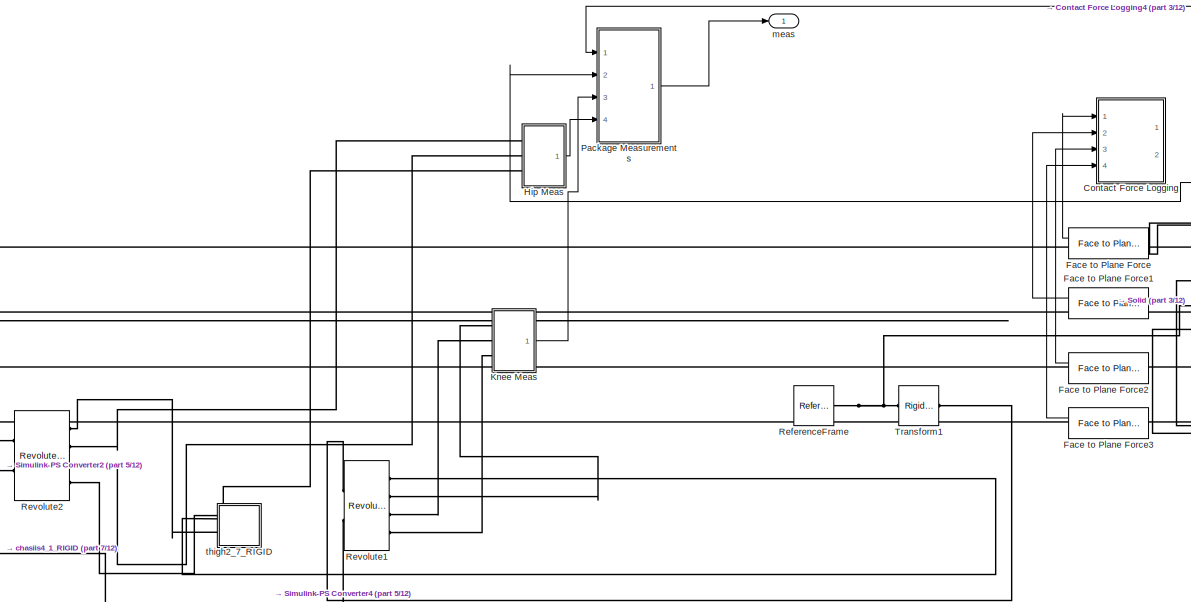
[diagram: root canvas - part 1/12, top left region]
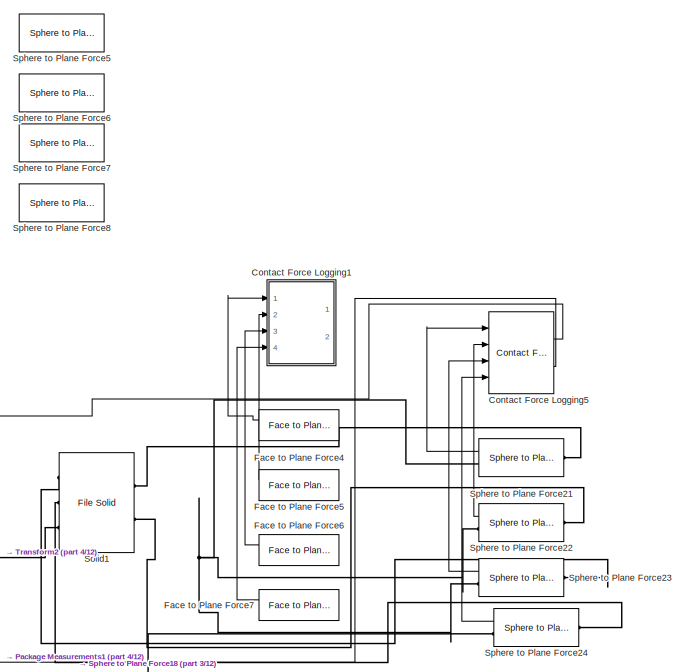
[diagram: root canvas - part 2/12, top right region]
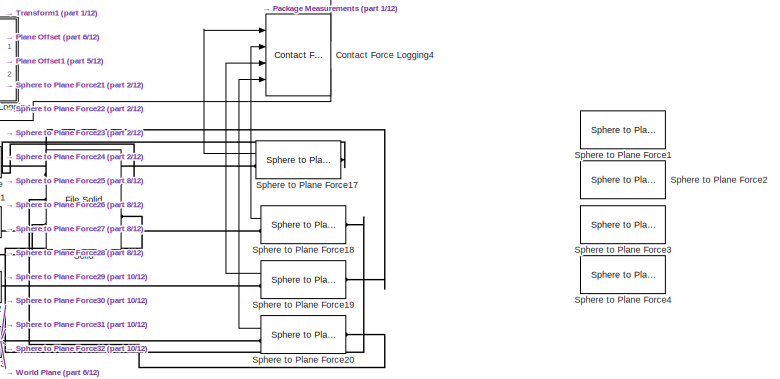
[diagram: root canvas - part 3/12, top center region]
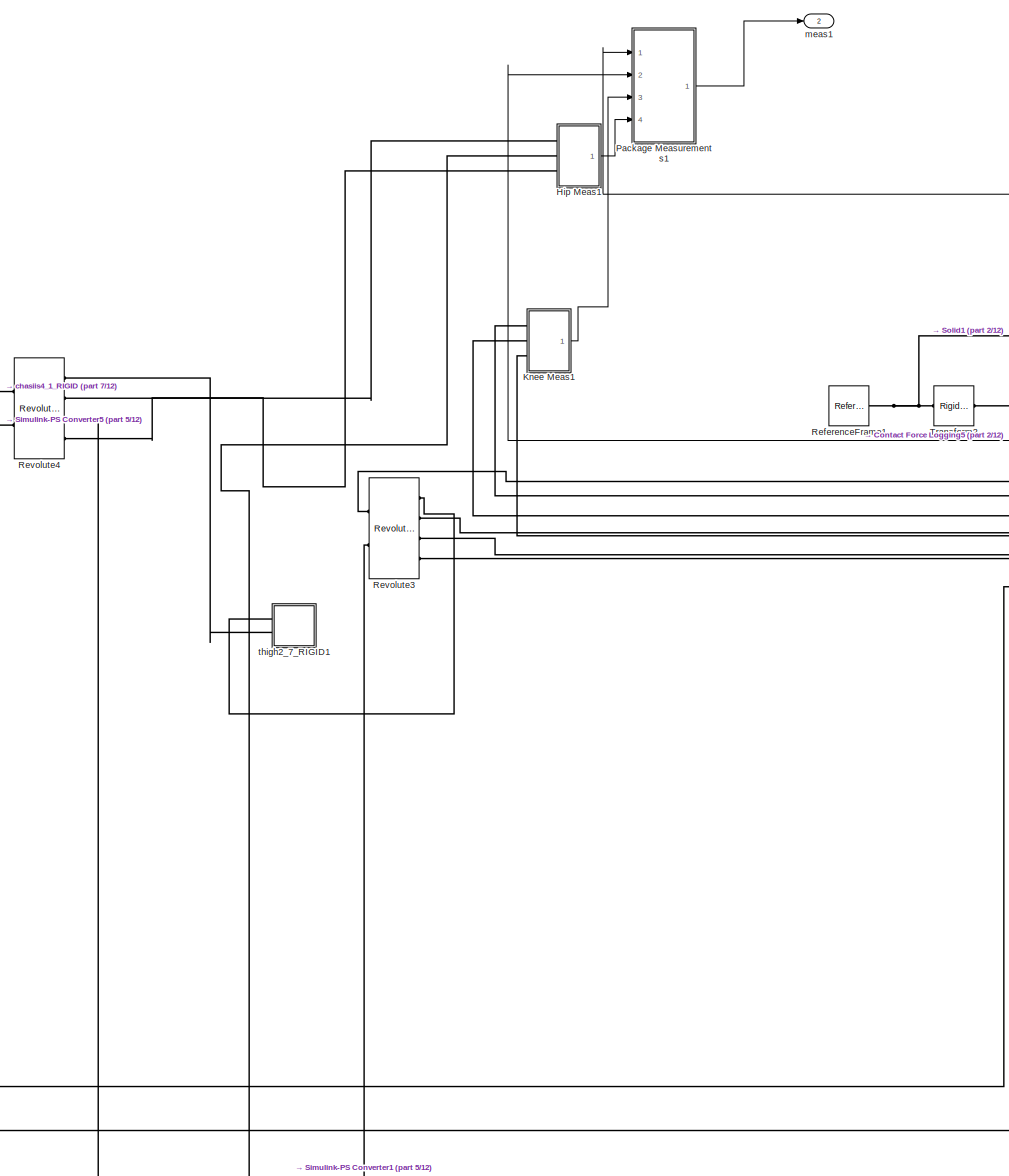
[diagram: root canvas - part 4/12, top center region]
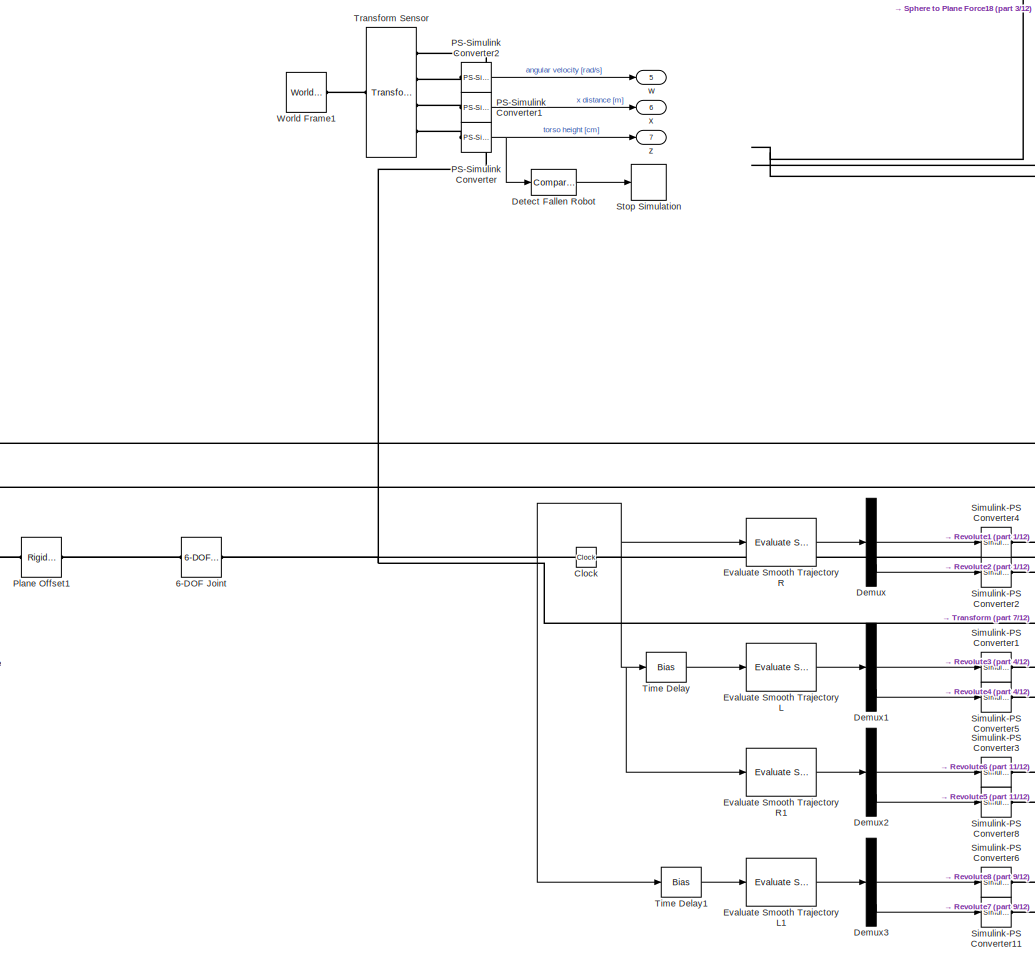
[diagram: root canvas - part 5/12, middle left region]
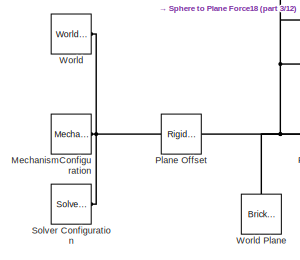
[diagram: root canvas - part 6/12, middle left region]
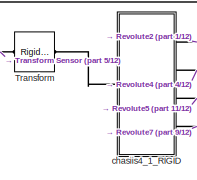
[diagram: root canvas - part 7/12, middle left region]
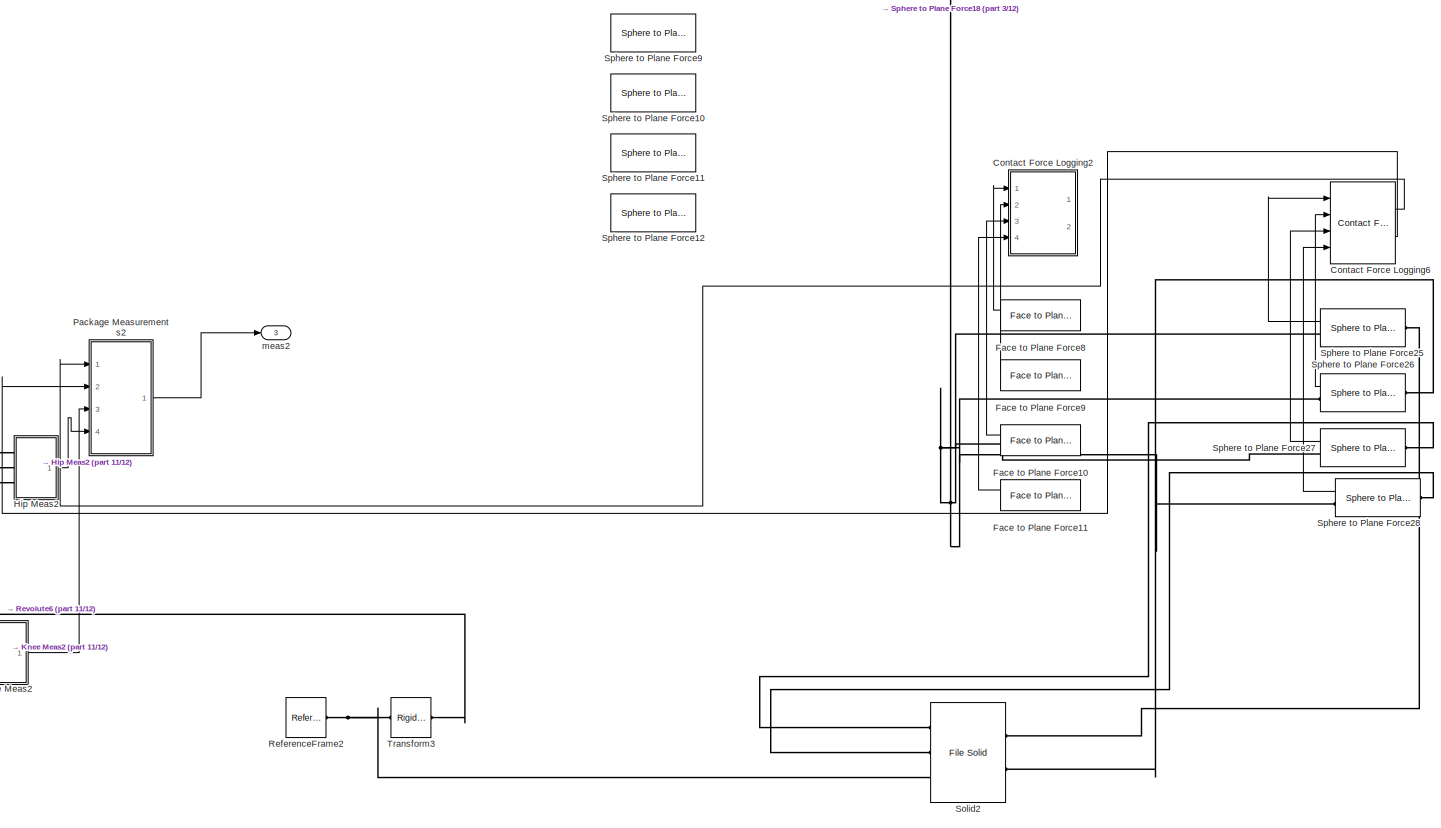
[diagram: root canvas - part 8/12, bottom right region]
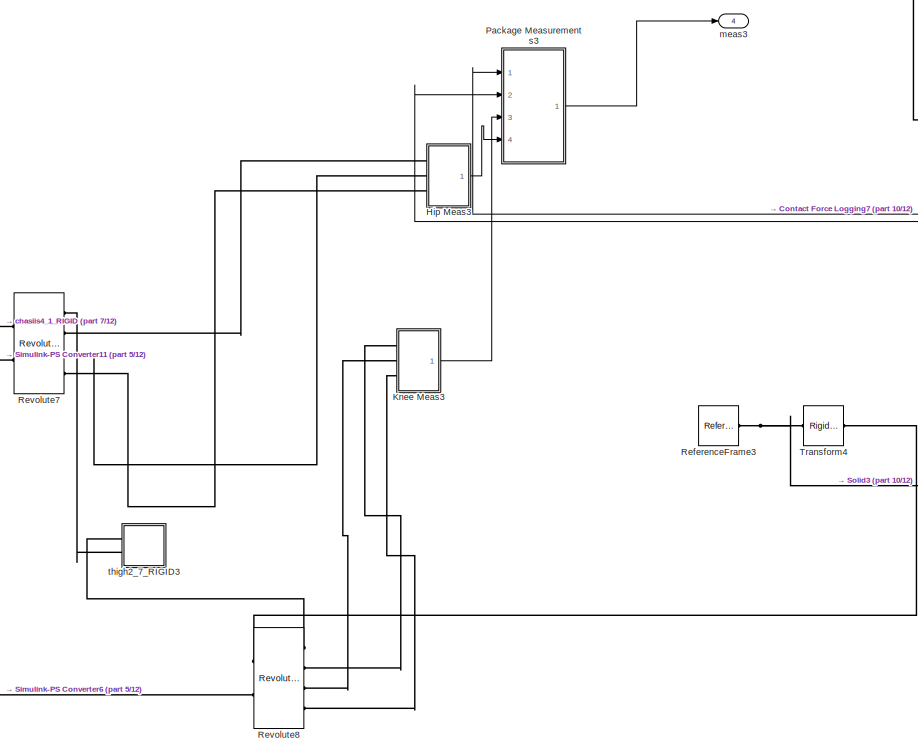
[diagram: root canvas - part 9/12, bottom center region]
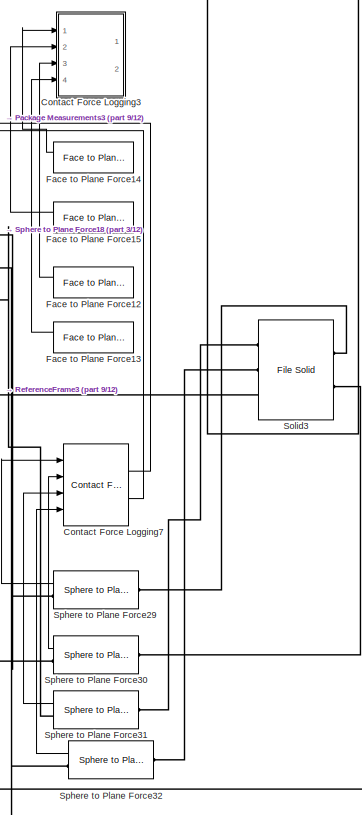
[diagram: root canvas - part 10/12, bottom center region]
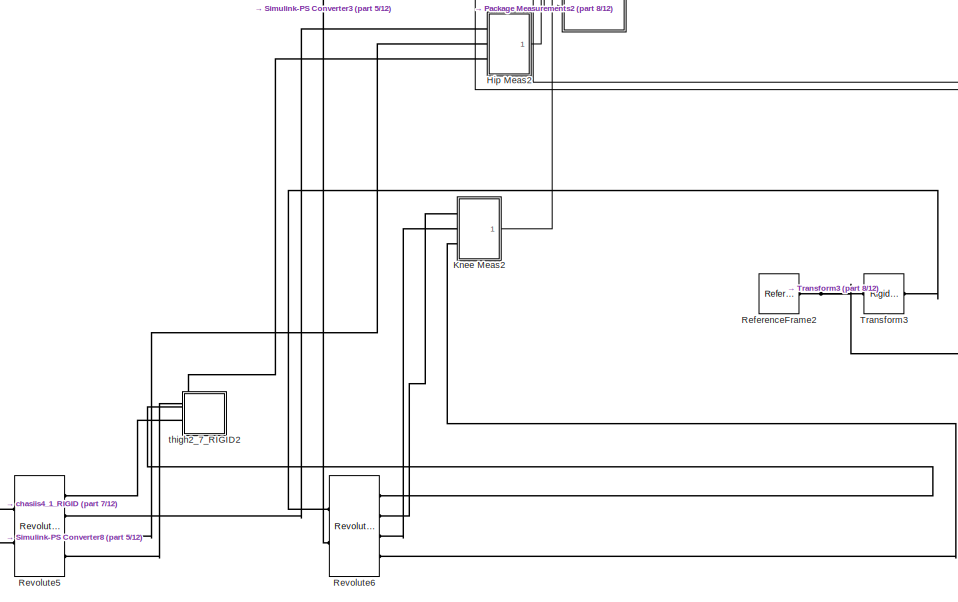
[diagram: root canvas - part 11/12, bottom right region]
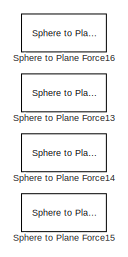
[diagram: root canvas - part 12/12, bottom center region]
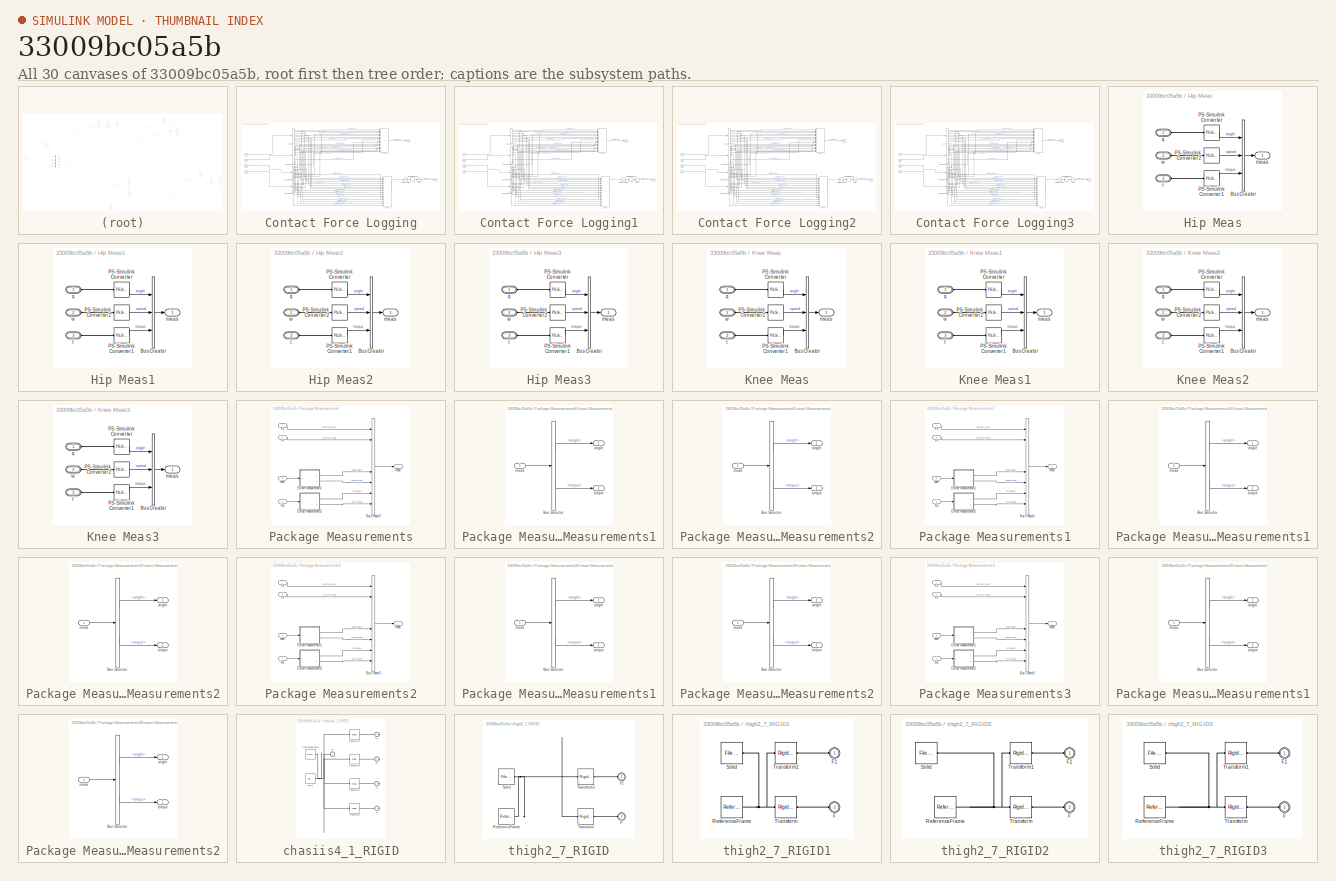
[diagram: thumbnail index - all 30 canvases of the model, root first then tree order]
MODEL slx_33009bc05a5b
KIND model
CONFIG AbsTol = auto
CONFIG EnableMultiTasking = off
CONFIG FixedStep = auto
CONFIG MaxStep = auto
CONFIG MinStep = auto
CONFIG RelTol = 1e-3
CONFIG SampleTimeConstraint = Unconstrained
CONFIG Solver = VariableStepAuto
CONFIG SolverName = VariableStepAuto
CONFIG StartTime = 0.0
CONFIG StopTime = 10.0
WORKSPACE source: external: MAT-File  (data not in archive)
BLOCK [Reference] 6-DOF Joint  REF=sm_lib/Joints/6-DOF Joint
  Ports = [0, 0, 0, 0, 0, 1, 1]
  SourceBlock = sm_lib/Joints/6-DOF Joint
  SourceProductBaseCode = MS
  SourceType = 6-DOF Joint
BLOCK [Clock] Clock
  Decimation = 1
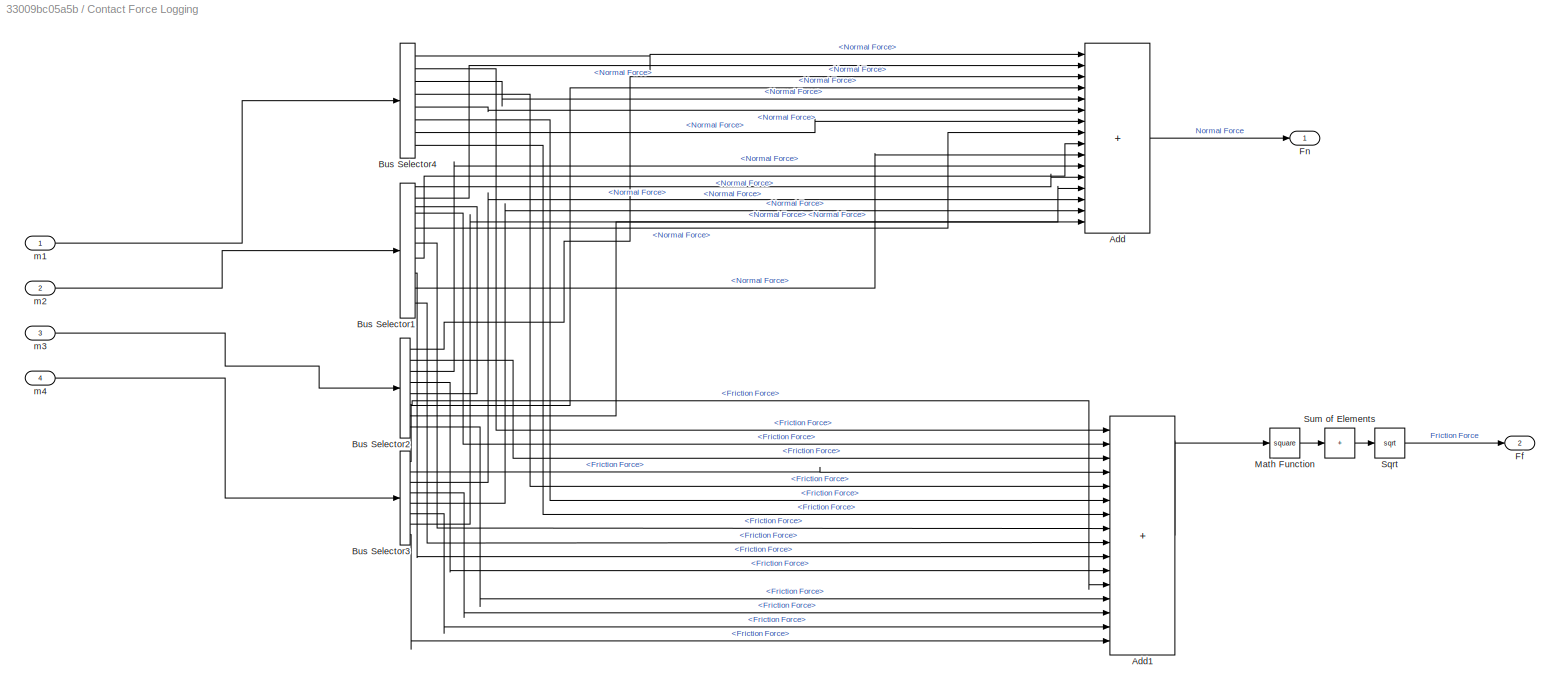
BLOCK [SubSystem] Contact Force Logging
  AncestorBlock = walkingRobotUtils/Contact Force Logging
  Commented = on
  Ports = [4, 2]
  RequestExecContextInheritance = off
BLOCK [Sum] Contact Force Logging/Add
  IconShape = rectangular
  Inputs = 16
  Ports = [16, 1]
BLOCK [Sum] Contact Force Logging/Add1
  IconShape = rectangular
  Inputs = 16
  Ports = [16, 1]
BLOCK [BusSelector] Contact Force Logging/Bus Selector1
  OutputSignals = fz1.Normal Force,fz1.Friction Force,fz2.Normal Force,fz2.Friction Force,fz3.Normal Force,fz3.Friction Force,fz4.Normal Force,fz4.Friction Force
  Ports = [1, 8]
BLOCK [BusSelector] Contact Force Logging/Bus Selector2
  OutputSignals = fz1.Normal Force,fz1.Friction Force,fz2.Normal Force,fz2.Friction Force,fz3.Normal Force,fz3.Friction Force,fz4.Normal Force,fz4.Friction Force
  Ports = [1, 8]
BLOCK [BusSelector] Contact Force Logging/Bus Selector3
  OutputSignals = fz1.Normal Force,fz1.Friction Force,fz2.Normal Force,fz2.Friction Force,fz3.Normal Force,fz3.Friction Force,fz4.Normal Force,fz4.Friction Force
  Ports = [1, 8]
BLOCK [BusSelector] Contact Force Logging/Bus Selector4
  OutputSignals = fz1.Normal Force,fz1.Friction Force,fz2.Normal Force,fz2.Friction Force,fz3.Normal Force,fz3.Friction Force,fz4.Normal Force,fz4.Friction Force
  Ports = [1, 8]
BLOCK [Outport] Contact Force Logging/Ff
  Port = 2
  VectorParamsAs1DForOutWhenUnconnected = off
BLOCK [Outport] Contact Force Logging/Fn
  VectorParamsAs1DForOutWhenUnconnected = off
BLOCK [Math] Contact Force Logging/Math Function
  Operator = square
  Ports = [1, 1]
  SignedPower = on
BLOCK [Sqrt] Contact Force Logging/Sqrt
BLOCK [Sum] Contact Force Logging/Sum of Elements
  IconShape = rectangular
  Inputs = +
  Ports = [1, 1]
BLOCK [Inport] Contact Force Logging/m1
BLOCK [Inport] Contact Force Logging/m2
  Port = 2
BLOCK [Inport] Contact Force Logging/m3
  Port = 3
BLOCK [Inport] Contact Force Logging/m4
  Port = 4
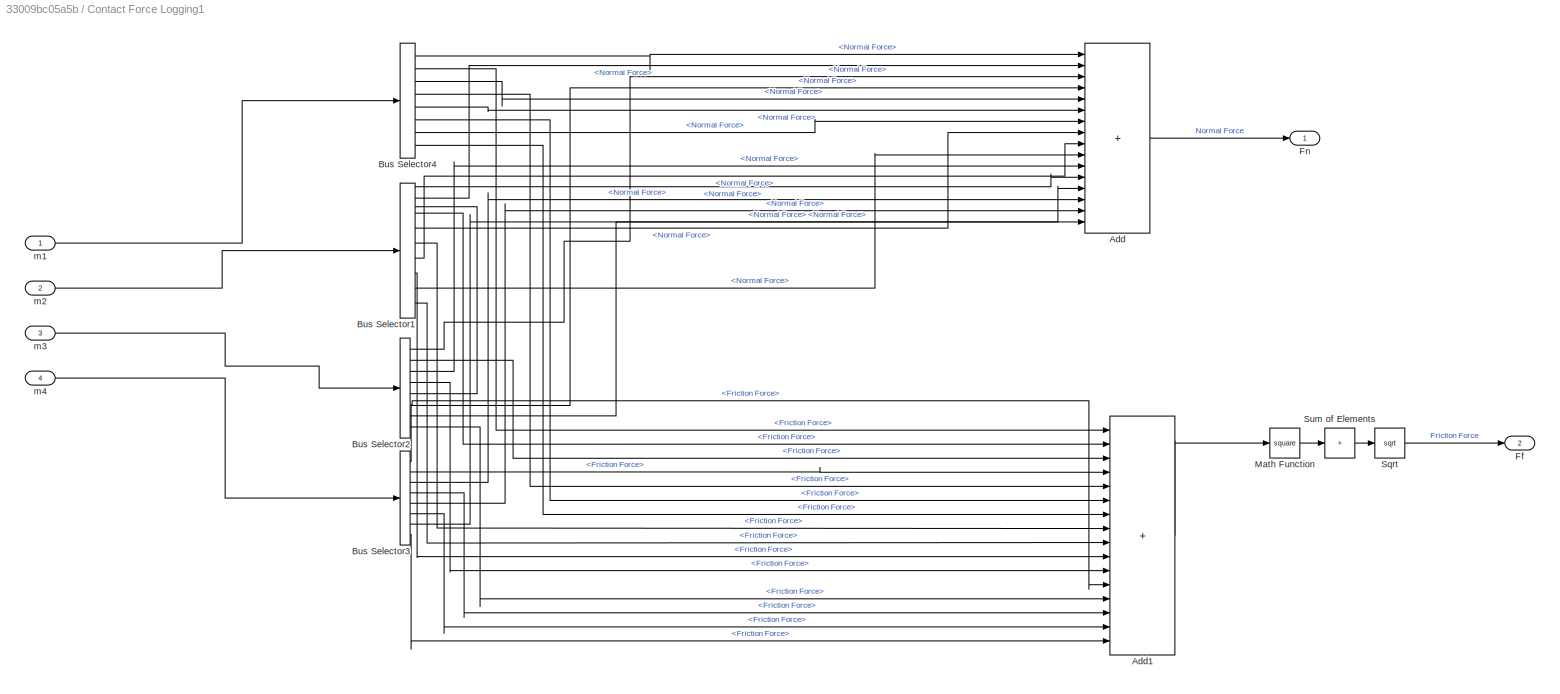
BLOCK [SubSystem] Contact Force Logging1
  AncestorBlock = walkingRobotUtils/Contact Force Logging
  Commented = on
  Ports = [4, 2]
  RequestExecContextInheritance = off
BLOCK [Sum] Contact Force Logging1/Add
  IconShape = rectangular
  Inputs = 16
  Ports = [16, 1]
BLOCK [Sum] Contact Force Logging1/Add1
  IconShape = rectangular
  Inputs = 16
  Ports = [16, 1]
BLOCK [BusSelector] Contact Force Logging1/Bus Selector1
  OutputSignals = fz1.Normal Force,fz1.Friction Force,fz2.Normal Force,fz2.Friction Force,fz3.Normal Force,fz3.Friction Force,fz4.Normal Force,fz4.Friction Force
  Ports = [1, 8]
BLOCK [BusSelector] Contact Force Logging1/Bus Selector2
  OutputSignals = fz1.Normal Force,fz1.Friction Force,fz2.Normal Force,fz2.Friction Force,fz3.Normal Force,fz3.Friction Force,fz4.Normal Force,fz4.Friction Force
  Ports = [1, 8]
BLOCK [BusSelector] Contact Force Logging1/Bus Selector3
  OutputSignals = fz1.Normal Force,fz1.Friction Force,fz2.Normal Force,fz2.Friction Force,fz3.Normal Force,fz3.Friction Force,fz4.Normal Force,fz4.Friction Force
  Ports = [1, 8]
BLOCK [BusSelector] Contact Force Logging1/Bus Selector4
  OutputSignals = fz1.Normal Force,fz1.Friction Force,fz2.Normal Force,fz2.Friction Force,fz3.Normal Force,fz3.Friction Force,fz4.Normal Force,fz4.Friction Force
  Ports = [1, 8]
BLOCK [Outport] Contact Force Logging1/Ff
  Port = 2
  VectorParamsAs1DForOutWhenUnconnected = off
BLOCK [Outport] Contact Force Logging1/Fn
  VectorParamsAs1DForOutWhenUnconnected = off
BLOCK [Math] Contact Force Logging1/Math Function
  Operator = square
  Ports = [1, 1]
  SignedPower = on
BLOCK [Sqrt] Contact Force Logging1/Sqrt
BLOCK [Sum] Contact Force Logging1/Sum of Elements
  IconShape = rectangular
  Inputs = +
  Ports = [1, 1]
BLOCK [Inport] Contact Force Logging1/m1
BLOCK [Inport] Contact Force Logging1/m2
  Port = 2
BLOCK [Inport] Contact Force Logging1/m3
  Port = 3
BLOCK [Inport] Contact Force Logging1/m4
  Port = 4
BLOCK [SubSystem] Contact Force Logging2
  AncestorBlock = walkingRobotUtils/Contact Force Logging
  Commented = on
  Ports = [4, 2]
  RequestExecContextInheritance = off
BLOCK [Sum] Contact Force Logging2/Add
  IconShape = rectangular
  Inputs = 16
  Ports = [16, 1]
BLOCK [Sum] Contact Force Logging2/Add1
  IconShape = rectangular
  Inputs = 16
  Ports = [16, 1]
BLOCK [BusSelector] Contact Force Logging2/Bus Selector1
  OutputSignals = fz1.Normal Force,fz1.Friction Force,fz2.Normal Force,fz2.Friction Force,fz3.Normal Force,fz3.Friction Force,fz4.Normal Force,fz4.Friction Force
  Ports = [1, 8]
BLOCK [BusSelector] Contact Force Logging2/Bus Selector2
  OutputSignals = fz1.Normal Force,fz1.Friction Force,fz2.Normal Force,fz2.Friction Force,fz3.Normal Force,fz3.Friction Force,fz4.Normal Force,fz4.Friction Force
  Ports = [1, 8]
BLOCK [BusSelector] Contact Force Logging2/Bus Selector3
  OutputSignals = fz1.Normal Force,fz1.Friction Force,fz2.Normal Force,fz2.Friction Force,fz3.Normal Force,fz3.Friction Force,fz4.Normal Force,fz4.Friction Force
  Ports = [1, 8]
BLOCK [BusSelector] Contact Force Logging2/Bus Selector4
  OutputSignals = fz1.Normal Force,fz1.Friction Force,fz2.Normal Force,fz2.Friction Force,fz3.Normal Force,fz3.Friction Force,fz4.Normal Force,fz4.Friction Force
  Ports = [1, 8]
BLOCK [Outport] Contact Force Logging2/Ff
  Port = 2
  VectorParamsAs1DForOutWhenUnconnected = off
BLOCK [Outport] Contact Force Logging2/Fn
  VectorParamsAs1DForOutWhenUnconnected = off
BLOCK [Math] Contact Force Logging2/Math Function
  Operator = square
  Ports = [1, 1]
  SignedPower = on
BLOCK [Sqrt] Contact Force Logging2/Sqrt
BLOCK [Sum] Contact Force Logging2/Sum of Elements
  IconShape = rectangular
  Inputs = +
  Ports = [1, 1]
BLOCK [Inport] Contact Force Logging2/m1
BLOCK [Inport] Contact Force Logging2/m2
  Port = 2
BLOCK [Inport] Contact Force Logging2/m3
  Port = 3
BLOCK [Inport] Contact Force Logging2/m4
  Port = 4
BLOCK [SubSystem] Contact Force Logging3
  AncestorBlock = walkingRobotUtils/Contact Force Logging
  Commented = on
  Ports = [4, 2]
  RequestExecContextInheritance = off
BLOCK [Sum] Contact Force Logging3/Add
  IconShape = rectangular
  Inputs = 16
  Ports = [16, 1]
BLOCK [Sum] Contact Force Logging3/Add1
  IconShape = rectangular
  Inputs = 16
  Ports = [16, 1]
BLOCK [BusSelector] Contact Force Logging3/Bus Selector1
  OutputSignals = fz1.Normal Force,fz1.Friction Force,fz2.Normal Force,fz2.Friction Force,fz3.Normal Force,fz3.Friction Force,fz4.Normal Force,fz4.Friction Force
  Ports = [1, 8]
BLOCK [BusSelector] Contact Force Logging3/Bus Selector2
  OutputSignals = fz1.Normal Force,fz1.Friction Force,fz2.Normal Force,fz2.Friction Force,fz3.Normal Force,fz3.Friction Force,fz4.Normal Force,fz4.Friction Force
  Ports = [1, 8]
BLOCK [BusSelector] Contact Force Logging3/Bus Selector3
  OutputSignals = fz1.Normal Force,fz1.Friction Force,fz2.Normal Force,fz2.Friction Force,fz3.Normal Force,fz3.Friction Force,fz4.Normal Force,fz4.Friction Force
  Ports = [1, 8]
BLOCK [BusSelector] Contact Force Logging3/Bus Selector4
  OutputSignals = fz1.Normal Force,fz1.Friction Force,fz2.Normal Force,fz2.Friction Force,fz3.Normal Force,fz3.Friction Force,fz4.Normal Force,fz4.Friction Force
  Ports = [1, 8]
BLOCK [Outport] Contact Force Logging3/Ff
  Port = 2
  VectorParamsAs1DForOutWhenUnconnected = off
BLOCK [Outport] Contact Force Logging3/Fn
  VectorParamsAs1DForOutWhenUnconnected = off
BLOCK [Math] Contact Force Logging3/Math Function
  Operator = square
  Ports = [1, 1]
  SignedPower = on
BLOCK [Sqrt] Contact Force Logging3/Sqrt
BLOCK [Sum] Contact Force Logging3/Sum of Elements
  IconShape = rectangular
  Inputs = +
  Ports = [1, 1]
BLOCK [Inport] Contact Force Logging3/m1
BLOCK [Inport] Contact Force Logging3/m2
  Port = 2
BLOCK [Inport] Contact Force Logging3/m3
  Port = 3
BLOCK [Inport] Contact Force Logging3/m4
  Port = 4
BLOCK [Reference] Contact Force Logging4  REF=walkingRobotUtils/Contact Force Logging
  Ports = [4, 2]
  SourceBlock = walkingRobotUtils/Contact Force Logging
  SourceType = SubSystem
BLOCK [Reference] Contact Force Logging5  REF=walkingRobotUtils/Contact Force Logging
  Ports = [4, 2]
  SourceBlock = walkingRobotUtils/Contact Force Logging
  SourceType = SubSystem
BLOCK [Reference] Contact Force Logging6  REF=walkingRobotUtils/Contact Force Logging
  Ports = [4, 2]
  SourceBlock = walkingRobotUtils/Contact Force Logging
  SourceType = SubSystem
BLOCK [Reference] Contact Force Logging7  REF=walkingRobotUtils/Contact Force Logging
  Ports = [4, 2]
  SourceBlock = walkingRobotUtils/Contact Force Logging
  SourceType = SubSystem
BLOCK [Demux] Demux
  Outputs = 3
  Ports = [1, 3]
BLOCK [Demux] Demux1
  Outputs = 3
  Ports = [1, 3]
BLOCK [Demux] Demux2
  Outputs = 3
  Ports = [1, 3]
BLOCK [Demux] Demux3
  Outputs = 3
  Ports = [1, 3]
BLOCK [Reference] Detect Fallen Robot  REF=simulink/Logic and Bit
Operations/Compare
To Constant
  Ports = [1, 1]
  SourceBlock = simulink/Logic and Bit\nOperations/Compare\nTo Constant
  SourceProductBaseCode = SL
  SourceType = Compare To Constant
BLOCK [Reference] Evaluate Smooth Trajectory L  REF=walkingRobotUtils/Evaluate Smooth 
Trajectory
  Ports = [1, 1]
  SourceBlock = walkingRobotUtils/Evaluate Smooth \nTrajectory
  SourceType = SubSystem
BLOCK [Reference] Evaluate Smooth Trajectory L1  REF=walkingRobotUtils/Evaluate Smooth 
Trajectory
  Ports = [1, 1]
  SourceBlock = walkingRobotUtils/Evaluate Smooth \nTrajectory
  SourceType = SubSystem
BLOCK [Reference] Evaluate Smooth Trajectory R  REF=walkingRobotUtils/Evaluate Smooth 
Trajectory
  Ports = [1, 1]
  SourceBlock = walkingRobotUtils/Evaluate Smooth \nTrajectory
  SourceType = SubSystem
BLOCK [Reference] Evaluate Smooth Trajectory R1  REF=walkingRobotUtils/Evaluate Smooth 
Trajectory
  Ports = [1, 1]
  SourceBlock = walkingRobotUtils/Evaluate Smooth \nTrajectory
  SourceType = SubSystem
BLOCK [Reference] Face to Plane Force  REF=Contact_Forces_Lib/3D/Composite
Forces/Face to Plane Force
  Commented = on
  Ports = [0, 1, 0, 0, 0, 1, 1]
  SourceBlock = Contact_Forces_Lib/3D/Composite\nForces/Face to Plane Force
  SourceProductName = Simscape Multibody Contact Forces Library
  SourceType = Face to Plane Force
BLOCK [Reference] Face to Plane Force1  REF=Contact_Forces_Lib/3D/Composite
Forces/Face to Plane Force
  Commented = on
  Ports = [0, 1, 0, 0, 0, 1, 1]
  SourceBlock = Contact_Forces_Lib/3D/Composite\nForces/Face to Plane Force
  SourceProductName = Simscape Multibody Contact Forces Library
  SourceType = Face to Plane Force
BLOCK [Reference] Face to Plane Force10  REF=Contact_Forces_Lib/3D/Composite
Forces/Face to Plane Force
  Commented = on
  Ports = [0, 1, 0, 0, 0, 1, 1]
  SourceBlock = Contact_Forces_Lib/3D/Composite\nForces/Face to Plane Force
  SourceProductName = Simscape Multibody Contact Forces Library
  SourceType = Face to Plane Force
BLOCK [Reference] Face to Plane Force11  REF=Contact_Forces_Lib/3D/Composite
Forces/Face to Plane Force
  Commented = on
  Ports = [0, 1, 0, 0, 0, 1, 1]
  SourceBlock = Contact_Forces_Lib/3D/Composite\nForces/Face to Plane Force
  SourceProductName = Simscape Multibody Contact Forces Library
  SourceType = Face to Plane Force
BLOCK [Reference] Face to Plane Force12  REF=Contact_Forces_Lib/3D/Composite
Forces/Face to Plane Force
  Commented = on
  Ports = [0, 1, 0, 0, 0, 1, 1]
  SourceBlock = Contact_Forces_Lib/3D/Composite\nForces/Face to Plane Force
  SourceProductName = Simscape Multibody Contact Forces Library
  SourceType = Face to Plane Force
BLOCK [Reference] Face to Plane Force13  REF=Contact_Forces_Lib/3D/Composite
Forces/Face to Plane Force
  Commented = on
  Ports = [0, 1, 0, 0, 0, 1, 1]
  SourceBlock = Contact_Forces_Lib/3D/Composite\nForces/Face to Plane Force
  SourceProductName = Simscape Multibody Contact Forces Library
  SourceType = Face to Plane Force
BLOCK [Reference] Face to Plane Force14  REF=Contact_Forces_Lib/3D/Composite
Forces/Face to Plane Force
  Commented = on
  Ports = [0, 1, 0, 0, 0, 1, 1]
  SourceBlock = Contact_Forces_Lib/3D/Composite\nForces/Face to Plane Force
  SourceProductName = Simscape Multibody Contact Forces Library
  SourceType = Face to Plane Force
BLOCK [Reference] Face to Plane Force15  REF=Contact_Forces_Lib/3D/Composite
Forces/Face to Plane Force
  Commented = on
  Ports = [0, 1, 0, 0, 0, 1, 1]
  SourceBlock = Contact_Forces_Lib/3D/Composite\nForces/Face to Plane Force
  SourceProductName = Simscape Multibody Contact Forces Library
  SourceType = Face to Plane Force
BLOCK [Reference] Face to Plane Force2  REF=Contact_Forces_Lib/3D/Composite
Forces/Face to Plane Force
  Commented = on
  Ports = [0, 1, 0, 0, 0, 1, 1]
  SourceBlock = Contact_Forces_Lib/3D/Composite\nForces/Face to Plane Force
  SourceProductName = Simscape Multibody Contact Forces Library
  SourceType = Face to Plane Force
BLOCK [Reference] Face to Plane Force3  REF=Contact_Forces_Lib/3D/Composite
Forces/Face to Plane Force
  Commented = on
  Ports = [0, 1, 0, 0, 0, 1, 1]
  SourceBlock = Contact_Forces_Lib/3D/Composite\nForces/Face to Plane Force
  SourceProductName = Simscape Multibody Contact Forces Library
  SourceType = Face to Plane Force
BLOCK [Reference] Face to Plane Force4  REF=Contact_Forces_Lib/3D/Composite
Forces/Face to Plane Force
  Commented = on
  Ports = [0, 1, 0, 0, 0, 1, 1]
  SourceBlock = Contact_Forces_Lib/3D/Composite\nForces/Face to Plane Force
  SourceProductName = Simscape Multibody Contact Forces Library
  SourceType = Face to Plane Force
BLOCK [Reference] Face to Plane Force5  REF=Contact_Forces_Lib/3D/Composite
Forces/Face to Plane Force
  Commented = on
  Ports = [0, 1, 0, 0, 0, 1, 1]
  SourceBlock = Contact_Forces_Lib/3D/Composite\nForces/Face to Plane Force
  SourceProductName = Simscape Multibody Contact Forces Library
  SourceType = Face to Plane Force
BLOCK [Reference] Face to Plane Force6  REF=Contact_Forces_Lib/3D/Composite
Forces/Face to Plane Force
  Commented = on
  Ports = [0, 1, 0, 0, 0, 1, 1]
  SourceBlock = Contact_Forces_Lib/3D/Composite\nForces/Face to Plane Force
  SourceProductName = Simscape Multibody Contact Forces Library
  SourceType = Face to Plane Force
BLOCK [Reference] Face to Plane Force7  REF=Contact_Forces_Lib/3D/Composite
Forces/Face to Plane Force
  Commented = on
  Ports = [0, 1, 0, 0, 0, 1, 1]
  SourceBlock = Contact_Forces_Lib/3D/Composite\nForces/Face to Plane Force
  SourceProductName = Simscape Multibody Contact Forces Library
  SourceType = Face to Plane Force
BLOCK [Reference] Face to Plane Force8  REF=Contact_Forces_Lib/3D/Composite
Forces/Face to Plane Force
  Commented = on
  Ports = [0, 1, 0, 0, 0, 1, 1]
  SourceBlock = Contact_Forces_Lib/3D/Composite\nForces/Face to Plane Force
  SourceProductName = Simscape Multibody Contact Forces Library
  SourceType = Face to Plane Force
BLOCK [Reference] Face to Plane Force9  REF=Contact_Forces_Lib/3D/Composite
Forces/Face to Plane Force
  Commented = on
  Ports = [0, 1, 0, 0, 0, 1, 1]
  SourceBlock = Contact_Forces_Lib/3D/Composite\nForces/Face to Plane Force
  SourceProductName = Simscape Multibody Contact Forces Library
  SourceType = Face to Plane Force
BLOCK [SubSystem] Hip Meas
  Ports = [0, 1, 0, 0, 0, 3]
  RequestExecContextInheritance = off
BLOCK [BusCreator] Hip Meas/Bus Creator
  DisplayOption = bar
  InheritFromInputs = on
  Inputs = 3
  Ports = [3, 1]
BLOCK [Reference] Hip Meas/PS-Simulink Converter  REF=nesl_utility/PS-Simulink
Converter
  Ports = [0, 1, 0, 0, 0, 1]
  SourceBlock = nesl_utility/PS-Simulink\nConverter
  SourceProductBaseCode = SS
  SourceType = PS-Simulink\nConverter
BLOCK [Reference] Hip Meas/PS-Simulink Converter1  REF=nesl_utility/PS-Simulink
Converter
  Ports = [0, 1, 0, 0, 0, 1]
  SourceBlock = nesl_utility/PS-Simulink\nConverter
  SourceProductBaseCode = SS
  SourceType = PS-Simulink\nConverter
BLOCK [Reference] Hip Meas/PS-Simulink Converter2  REF=nesl_utility/PS-Simulink
Converter
  Ports = [0, 1, 0, 0, 0, 1]
  SourceBlock = nesl_utility/PS-Simulink\nConverter
  SourceProductBaseCode = SS
  SourceType = PS-Simulink\nConverter
BLOCK [Outport] Hip Meas/meas
  VectorParamsAs1DForOutWhenUnconnected = off
BLOCK [PMIOPort] Hip Meas/q
  Side = Left
BLOCK [PMIOPort] Hip Meas/t
  Port = 3
  Side = Left
BLOCK [PMIOPort] Hip Meas/w
  Port = 2
  Side = Left
BLOCK [SubSystem] Hip Meas1
  Ports = [0, 1, 0, 0, 0, 3]
  RequestExecContextInheritance = off
BLOCK [BusCreator] Hip Meas1/Bus Creator
  DisplayOption = bar
  InheritFromInputs = on
  Inputs = 3
  Ports = [3, 1]
BLOCK [Reference] Hip Meas1/PS-Simulink Converter  REF=nesl_utility/PS-Simulink
Converter
  Ports = [0, 1, 0, 0, 0, 1]
  SourceBlock = nesl_utility/PS-Simulink\nConverter
  SourceProductBaseCode = SS
  SourceType = PS-Simulink\nConverter
BLOCK [Reference] Hip Meas1/PS-Simulink Converter1  REF=nesl_utility/PS-Simulink
Converter
  Ports = [0, 1, 0, 0, 0, 1]
  SourceBlock = nesl_utility/PS-Simulink\nConverter
  SourceProductBaseCode = SS
  SourceType = PS-Simulink\nConverter
BLOCK [Reference] Hip Meas1/PS-Simulink Converter2  REF=nesl_utility/PS-Simulink
Converter
  Ports = [0, 1, 0, 0, 0, 1]
  SourceBlock = nesl_utility/PS-Simulink\nConverter
  SourceProductBaseCode = SS
  SourceType = PS-Simulink\nConverter
BLOCK [Outport] Hip Meas1/meas
  VectorParamsAs1DForOutWhenUnconnected = off
BLOCK [PMIOPort] Hip Meas1/q
  Side = Left
BLOCK [PMIOPort] Hip Meas1/t
  Port = 3
  Side = Left
BLOCK [PMIOPort] Hip Meas1/w
  Port = 2
  Side = Left
BLOCK [SubSystem] Hip Meas2
  Ports = [0, 1, 0, 0, 0, 3]
  RequestExecContextInheritance = off
BLOCK [BusCreator] Hip Meas2/Bus Creator
  DisplayOption = bar
  InheritFromInputs = on
  Inputs = 3
  Ports = [3, 1]
BLOCK [Reference] Hip Meas2/PS-Simulink Converter  REF=nesl_utility/PS-Simulink
Converter
  Ports = [0, 1, 0, 0, 0, 1]
  SourceBlock = nesl_utility/PS-Simulink\nConverter
  SourceProductBaseCode = SS
  SourceType = PS-Simulink\nConverter
BLOCK [Reference] Hip Meas2/PS-Simulink Converter1  REF=nesl_utility/PS-Simulink
Converter
  Ports = [0, 1, 0, 0, 0, 1]
  SourceBlock = nesl_utility/PS-Simulink\nConverter
  SourceProductBaseCode = SS
  SourceType = PS-Simulink\nConverter
BLOCK [Reference] Hip Meas2/PS-Simulink Converter2  REF=nesl_utility/PS-Simulink
Converter
  Ports = [0, 1, 0, 0, 0, 1]
  SourceBlock = nesl_utility/PS-Simulink\nConverter
  SourceProductBaseCode = SS
  SourceType = PS-Simulink\nConverter
BLOCK [Outport] Hip Meas2/meas
  VectorParamsAs1DForOutWhenUnconnected = off
BLOCK [PMIOPort] Hip Meas2/q
  Side = Left
BLOCK [PMIOPort] Hip Meas2/t
  Port = 3
  Side = Left
BLOCK [PMIOPort] Hip Meas2/w
  Port = 2
  Side = Left
BLOCK [SubSystem] Hip Meas3
  Ports = [0, 1, 0, 0, 0, 3]
  RequestExecContextInheritance = off
BLOCK [BusCreator] Hip Meas3/Bus Creator
  DisplayOption = bar
  InheritFromInputs = on
  Inputs = 3
  Ports = [3, 1]
BLOCK [Reference] Hip Meas3/PS-Simulink Converter  REF=nesl_utility/PS-Simulink
Converter
  Ports = [0, 1, 0, 0, 0, 1]
  SourceBlock = nesl_utility/PS-Simulink\nConverter
  SourceProductBaseCode = SS
  SourceType = PS-Simulink\nConverter
BLOCK [Reference] Hip Meas3/PS-Simulink Converter1  REF=nesl_utility/PS-Simulink
Converter
  Ports = [0, 1, 0, 0, 0, 1]
  SourceBlock = nesl_utility/PS-Simulink\nConverter
  SourceProductBaseCode = SS
  SourceType = PS-Simulink\nConverter
BLOCK [Reference] Hip Meas3/PS-Simulink Converter2  REF=nesl_utility/PS-Simulink
Converter
  Ports = [0, 1, 0, 0, 0, 1]
  SourceBlock = nesl_utility/PS-Simulink\nConverter
  SourceProductBaseCode = SS
  SourceType = PS-Simulink\nConverter
BLOCK [Outport] Hip Meas3/meas
  VectorParamsAs1DForOutWhenUnconnected = off
BLOCK [PMIOPort] Hip Meas3/q
  Side = Left
BLOCK [PMIOPort] Hip Meas3/t
  Port = 3
  Side = Left
BLOCK [PMIOPort] Hip Meas3/w
  Port = 2
  Side = Left
BLOCK [SubSystem] Knee Meas
  Ports = [0, 1, 0, 0, 0, 3]
  RequestExecContextInheritance = off
BLOCK [BusCreator] Knee Meas/Bus Creator
  DisplayOption = bar
  InheritFromInputs = on
  Inputs = 3
  Ports = [3, 1]
BLOCK [Reference] Knee Meas/PS-Simulink Converter  REF=nesl_utility/PS-Simulink
Converter
  Ports = [0, 1, 0, 0, 0, 1]
  SourceBlock = nesl_utility/PS-Simulink\nConverter
  SourceProductBaseCode = SS
  SourceType = PS-Simulink\nConverter
BLOCK [Reference] Knee Meas/PS-Simulink Converter1  REF=nesl_utility/PS-Simulink
Converter
  Ports = [0, 1, 0, 0, 0, 1]
  SourceBlock = nesl_utility/PS-Simulink\nConverter
  SourceProductBaseCode = SS
  SourceType = PS-Simulink\nConverter
BLOCK [Reference] Knee Meas/PS-Simulink Converter2  REF=nesl_utility/PS-Simulink
Converter
  Ports = [0, 1, 0, 0, 0, 1]
  SourceBlock = nesl_utility/PS-Simulink\nConverter
  SourceProductBaseCode = SS
  SourceType = PS-Simulink\nConverter
BLOCK [Outport] Knee Meas/meas
  VectorParamsAs1DForOutWhenUnconnected = off
BLOCK [PMIOPort] Knee Meas/q
  Side = Left
BLOCK [PMIOPort] Knee Meas/t
  Port = 3
  Side = Left
BLOCK [PMIOPort] Knee Meas/w
  Port = 2
  Side = Left
BLOCK [SubSystem] Knee Meas1
  Ports = [0, 1, 0, 0, 0, 3]
  RequestExecContextInheritance = off
BLOCK [BusCreator] Knee Meas1/Bus Creator
  DisplayOption = bar
  InheritFromInputs = on
  Inputs = 3
  Ports = [3, 1]
BLOCK [Reference] Knee Meas1/PS-Simulink Converter  REF=nesl_utility/PS-Simulink
Converter
  Ports = [0, 1, 0, 0, 0, 1]
  SourceBlock = nesl_utility/PS-Simulink\nConverter
  SourceProductBaseCode = SS
  SourceType = PS-Simulink\nConverter
BLOCK [Reference] Knee Meas1/PS-Simulink Converter1  REF=nesl_utility/PS-Simulink
Converter
  Ports = [0, 1, 0, 0, 0, 1]
  SourceBlock = nesl_utility/PS-Simulink\nConverter
  SourceProductBaseCode = SS
  SourceType = PS-Simulink\nConverter
BLOCK [Reference] Knee Meas1/PS-Simulink Converter2  REF=nesl_utility/PS-Simulink
Converter
  Ports = [0, 1, 0, 0, 0, 1]
  SourceBlock = nesl_utility/PS-Simulink\nConverter
  SourceProductBaseCode = SS
  SourceType = PS-Simulink\nConverter
BLOCK [Outport] Knee Meas1/meas
  VectorParamsAs1DForOutWhenUnconnected = off
BLOCK [PMIOPort] Knee Meas1/q
  Side = Left
BLOCK [PMIOPort] Knee Meas1/t
  Port = 3
  Side = Left
BLOCK [PMIOPort] Knee Meas1/w
  Port = 2
  Side = Left
BLOCK [SubSystem] Knee Meas2
  Ports = [0, 1, 0, 0, 0, 3]
  RequestExecContextInheritance = off
BLOCK [BusCreator] Knee Meas2/Bus Creator
  DisplayOption = bar
  InheritFromInputs = on
  Inputs = 3
  Ports = [3, 1]
BLOCK [Reference] Knee Meas2/PS-Simulink Converter  REF=nesl_utility/PS-Simulink
Converter
  Ports = [0, 1, 0, 0, 0, 1]
  SourceBlock = nesl_utility/PS-Simulink\nConverter
  SourceProductBaseCode = SS
  SourceType = PS-Simulink\nConverter
BLOCK [Reference] Knee Meas2/PS-Simulink Converter1  REF=nesl_utility/PS-Simulink
Converter
  Ports = [0, 1, 0, 0, 0, 1]
  SourceBlock = nesl_utility/PS-Simulink\nConverter
  SourceProductBaseCode = SS
  SourceType = PS-Simulink\nConverter
BLOCK [Reference] Knee Meas2/PS-Simulink Converter2  REF=nesl_utility/PS-Simulink
Converter
  Ports = [0, 1, 0, 0, 0, 1]
  SourceBlock = nesl_utility/PS-Simulink\nConverter
  SourceProductBaseCode = SS
  SourceType = PS-Simulink\nConverter
BLOCK [Outport] Knee Meas2/meas
  VectorParamsAs1DForOutWhenUnconnected = off
BLOCK [PMIOPort] Knee Meas2/q
  Side = Left
BLOCK [PMIOPort] Knee Meas2/t
  Port = 3
  Side = Left
BLOCK [PMIOPort] Knee Meas2/w
  Port = 2
  Side = Left
BLOCK [SubSystem] Knee Meas3
  Ports = [0, 1, 0, 0, 0, 3]
  RequestExecContextInheritance = off
BLOCK [BusCreator] Knee Meas3/Bus Creator
  DisplayOption = bar
  InheritFromInputs = on
  Inputs = 3
  Ports = [3, 1]
BLOCK [Reference] Knee Meas3/PS-Simulink Converter  REF=nesl_utility/PS-Simulink
Converter
  Ports = [0, 1, 0, 0, 0, 1]
  SourceBlock = nesl_utility/PS-Simulink\nConverter
  SourceProductBaseCode = SS
  SourceType = PS-Simulink\nConverter
BLOCK [Reference] Knee Meas3/PS-Simulink Converter1  REF=nesl_utility/PS-Simulink
Converter
  Ports = [0, 1, 0, 0, 0, 1]
  SourceBlock = nesl_utility/PS-Simulink\nConverter
  SourceProductBaseCode = SS
  SourceType = PS-Simulink\nConverter
BLOCK [Reference] Knee Meas3/PS-Simulink Converter2  REF=nesl_utility/PS-Simulink
Converter
  Ports = [0, 1, 0, 0, 0, 1]
  SourceBlock = nesl_utility/PS-Simulink\nConverter
  SourceProductBaseCode = SS
  SourceType = PS-Simulink\nConverter
BLOCK [Outport] Knee Meas3/meas
  VectorParamsAs1DForOutWhenUnconnected = off
BLOCK [PMIOPort] Knee Meas3/q
  Side = Left
BLOCK [PMIOPort] Knee Meas3/t
  Port = 3
  Side = Left
BLOCK [PMIOPort] Knee Meas3/w
  Port = 2
  Side = Left
BLOCK [Reference] MechanismConfiguration  REF=sm_lib/Utilities/Mechanism
Configuration
  Ports = [0, 0, 0, 0, 0, 0, 1]
  SourceBlock = sm_lib/Utilities/Mechanism\nConfiguration
  SourceProductBaseCode = MS
  SourceType = Mechanism\nConfiguration
BLOCK [Reference] PS-Simulink Converter  REF=nesl_utility/PS-Simulink
Converter
  Ports = [0, 1, 0, 0, 0, 1]
  SourceBlock = nesl_utility/PS-Simulink\nConverter
  SourceProductBaseCode = SS
  SourceType = PS-Simulink\nConverter
BLOCK [Reference] PS-Simulink Converter1  REF=nesl_utility/PS-Simulink
Converter
  Ports = [0, 1, 0, 0, 0, 1]
  SourceBlock = nesl_utility/PS-Simulink\nConverter
  SourceProductBaseCode = SS
  SourceType = PS-Simulink\nConverter
BLOCK [Reference] PS-Simulink Converter2  REF=nesl_utility/PS-Simulink
Converter
  Ports = [0, 1, 0, 0, 0, 1]
  SourceBlock = nesl_utility/PS-Simulink\nConverter
  SourceProductBaseCode = SS
  SourceType = PS-Simulink\nConverter
BLOCK [SubSystem] Package Measurements
  AncestorBlock = walkingRobotUtils/Package \nMeasurements
  Ports = [4, 1]
  RequestExecContextInheritance = off
BLOCK [BusCreator] Package Measurements/Bus Creator3
  DisplayOption = bar
  InheritFromInputs = on
  Inputs = 8
  Ports = [8, 1]
BLOCK [SubSystem] Package Measurements/Extract Measurements1
  Ports = [1, 2]
  RequestExecContextInheritance = off
BLOCK [BusSelector] Package Measurements/Extract Measurements1/Bus Selector
  OutputSignals = angle,torque
  Ports = [1, 2]
BLOCK [Outport] Package Measurements/Extract Measurements1/angle
  VectorParamsAs1DForOutWhenUnconnected = off
BLOCK [Inport] Package Measurements/Extract Measurements1/meas
BLOCK [Outport] Package Measurements/Extract Measurements1/torque
  Port = 2
  VectorParamsAs1DForOutWhenUnconnected = off
BLOCK [SubSystem] Package Measurements/Extract Measurements2
  Ports = [1, 2]
  RequestExecContextInheritance = off
BLOCK [BusSelector] Package Measurements/Extract Measurements2/Bus Selector
  OutputSignals = angle,torque
  Ports = [1, 2]
BLOCK [Outport] Package Measurements/Extract Measurements2/angle
  VectorParamsAs1DForOutWhenUnconnected = off
BLOCK [Inport] Package Measurements/Extract Measurements2/meas
BLOCK [Outport] Package Measurements/Extract Measurements2/torque
  Port = 2
  VectorParamsAs1DForOutWhenUnconnected = off
BLOCK [Inport] Package Measurements/Ff
  Port = 2
BLOCK [Inport] Package Measurements/Fn
BLOCK [Inport] Package Measurements/hip
  Port = 4
BLOCK [Inport] Package Measurements/knee
  Port = 3
BLOCK [Outport] Package Measurements/meas
  VectorParamsAs1DForOutWhenUnconnected = off
BLOCK [SubSystem] Package Measurements1
  AncestorBlock = walkingRobotUtils/Package \nMeasurements
  Ports = [4, 1]
  RequestExecContextInheritance = off
BLOCK [BusCreator] Package Measurements1/Bus Creator3
  DisplayOption = bar
  InheritFromInputs = on
  Inputs = 8
  Ports = [8, 1]
BLOCK [SubSystem] Package Measurements1/Extract Measurements1
  Ports = [1, 2]
  RequestExecContextInheritance = off
BLOCK [BusSelector] Package Measurements1/Extract Measurements1/Bus Selector
  OutputSignals = angle,torque
  Ports = [1, 2]
BLOCK [Outport] Package Measurements1/Extract Measurements1/angle
  VectorParamsAs1DForOutWhenUnconnected = off
BLOCK [Inport] Package Measurements1/Extract Measurements1/meas
BLOCK [Outport] Package Measurements1/Extract Measurements1/torque
  Port = 2
  VectorParamsAs1DForOutWhenUnconnected = off
BLOCK [SubSystem] Package Measurements1/Extract Measurements2
  Ports = [1, 2]
  RequestExecContextInheritance = off
BLOCK [BusSelector] Package Measurements1/Extract Measurements2/Bus Selector
  OutputSignals = angle,torque
  Ports = [1, 2]
BLOCK [Outport] Package Measurements1/Extract Measurements2/angle
  VectorParamsAs1DForOutWhenUnconnected = off
BLOCK [Inport] Package Measurements1/Extract Measurements2/meas
BLOCK [Outport] Package Measurements1/Extract Measurements2/torque
  Port = 2
  VectorParamsAs1DForOutWhenUnconnected = off
BLOCK [Inport] Package Measurements1/Ff
  Port = 2
BLOCK [Inport] Package Measurements1/Fn
BLOCK [Inport] Package Measurements1/hip
  Port = 4
BLOCK [Inport] Package Measurements1/knee
  Port = 3
BLOCK [Outport] Package Measurements1/meas
  VectorParamsAs1DForOutWhenUnconnected = off
BLOCK [SubSystem] Package Measurements2
  AncestorBlock = walkingRobotUtils/Package \nMeasurements
  Ports = [4, 1]
  RequestExecContextInheritance = off
BLOCK [BusCreator] Package Measurements2/Bus Creator3
  DisplayOption = bar
  InheritFromInputs = on
  Inputs = 8
  Ports = [8, 1]
BLOCK [SubSystem] Package Measurements2/Extract Measurements1
  Ports = [1, 2]
  RequestExecContextInheritance = off
BLOCK [BusSelector] Package Measurements2/Extract Measurements1/Bus Selector
  OutputSignals = angle,torque
  Ports = [1, 2]
BLOCK [Outport] Package Measurements2/Extract Measurements1/angle
  VectorParamsAs1DForOutWhenUnconnected = off
BLOCK [Inport] Package Measurements2/Extract Measurements1/meas
BLOCK [Outport] Package Measurements2/Extract Measurements1/torque
  Port = 2
  VectorParamsAs1DForOutWhenUnconnected = off
BLOCK [SubSystem] Package Measurements2/Extract Measurements2
  Ports = [1, 2]
  RequestExecContextInheritance = off
BLOCK [BusSelector] Package Measurements2/Extract Measurements2/Bus Selector
  OutputSignals = angle,torque
  Ports = [1, 2]
BLOCK [Outport] Package Measurements2/Extract Measurements2/angle
  VectorParamsAs1DForOutWhenUnconnected = off
BLOCK [Inport] Package Measurements2/Extract Measurements2/meas
BLOCK [Outport] Package Measurements2/Extract Measurements2/torque
  Port = 2
  VectorParamsAs1DForOutWhenUnconnected = off
BLOCK [Inport] Package Measurements2/Ff
  Port = 2
BLOCK [Inport] Package Measurements2/Fn
BLOCK [Inport] Package Measurements2/hip
  Port = 4
BLOCK [Inport] Package Measurements2/knee
  Port = 3
BLOCK [Outport] Package Measurements2/meas
  VectorParamsAs1DForOutWhenUnconnected = off
BLOCK [SubSystem] Package Measurements3
  AncestorBlock = walkingRobotUtils/Package \nMeasurements
  Ports = [4, 1]
  RequestExecContextInheritance = off
BLOCK [BusCreator] Package Measurements3/Bus Creator3
  DisplayOption = bar
  InheritFromInputs = on
  Inputs = 8
  Ports = [8, 1]
BLOCK [SubSystem] Package Measurements3/Extract Measurements1
  Ports = [1, 2]
  RequestExecContextInheritance = off
BLOCK [BusSelector] Package Measurements3/Extract Measurements1/Bus Selector
  OutputSignals = angle,torque
  Ports = [1, 2]
BLOCK [Outport] Package Measurements3/Extract Measurements1/angle
  VectorParamsAs1DForOutWhenUnconnected = off
BLOCK [Inport] Package Measurements3/Extract Measurements1/meas
BLOCK [Outport] Package Measurements3/Extract Measurements1/torque
  Port = 2
  VectorParamsAs1DForOutWhenUnconnected = off
BLOCK [SubSystem] Package Measurements3/Extract Measurements2
  Ports = [1, 2]
  RequestExecContextInheritance = off
BLOCK [BusSelector] Package Measurements3/Extract Measurements2/Bus Selector
  OutputSignals = angle,torque
  Ports = [1, 2]
BLOCK [Outport] Package Measurements3/Extract Measurements2/angle
  VectorParamsAs1DForOutWhenUnconnected = off
BLOCK [Inport] Package Measurements3/Extract Measurements2/meas
BLOCK [Outport] Package Measurements3/Extract Measurements2/torque
  Port = 2
  VectorParamsAs1DForOutWhenUnconnected = off
BLOCK [Inport] Package Measurements3/Ff
  Port = 2
BLOCK [Inport] Package Measurements3/Fn
BLOCK [Inport] Package Measurements3/hip
  Port = 4
BLOCK [Inport] Package Measurements3/knee
  Port = 3
BLOCK [Outport] Package Measurements3/meas
  VectorParamsAs1DForOutWhenUnconnected = off
BLOCK [Reference] Plane Offset  REF=sm_lib/Frames and
Transforms/Rigid
Transform
  Ports = [0, 0, 0, 0, 0, 1, 1]
  SourceBlock = sm_lib/Frames and\nTransforms/Rigid\nTransform
  SourceProductBaseCode = MS
  SourceType = Rigid\nTransform
BLOCK [Reference] Plane Offset1  REF=sm_lib/Frames and
Transforms/Rigid
Transform
  Ports = [0, 0, 0, 0, 0, 1, 1]
  SourceBlock = sm_lib/Frames and\nTransforms/Rigid\nTransform
  SourceProductBaseCode = MS
  SourceType = Rigid\nTransform
BLOCK [Reference] ReferenceFrame  REF=sm_lib/Frames and
Transforms/Reference
Frame
  Ports = [0, 0, 0, 0, 0, 0, 1]
  SourceBlock = sm_lib/Frames and\nTransforms/Reference\nFrame
  SourceProductBaseCode = MS
  SourceType = Reference\nFrame
BLOCK [Reference] ReferenceFrame1  REF=sm_lib/Frames and
Transforms/Reference
Frame
  Ports = [0, 0, 0, 0, 0, 0, 1]
  SourceBlock = sm_lib/Frames and\nTransforms/Reference\nFrame
  SourceProductBaseCode = MS
  SourceType = Reference\nFrame
BLOCK [Reference] ReferenceFrame2  REF=sm_lib/Frames and
Transforms/Reference
Frame
  Ports = [0, 0, 0, 0, 0, 0, 1]
  SourceBlock = sm_lib/Frames and\nTransforms/Reference\nFrame
  SourceProductBaseCode = MS
  SourceType = Reference\nFrame
BLOCK [Reference] ReferenceFrame3  REF=sm_lib/Frames and
Transforms/Reference
Frame
  Ports = [0, 0, 0, 0, 0, 0, 1]
  SourceBlock = sm_lib/Frames and\nTransforms/Reference\nFrame
  SourceProductBaseCode = MS
  SourceType = Reference\nFrame
BLOCK [Reference] Revolute1  REF=sm_lib/Joints/Revolute Joint
  Ports = [0, 0, 0, 0, 0, 2, 4]
  SourceBlock = sm_lib/Joints/Revolute Joint
  SourceProductBaseCode = MS
  SourceType = Revolute Joint
BLOCK [Reference] Revolute2  REF=sm_lib/Joints/Revolute Joint
  Ports = [0, 0, 0, 0, 0, 2, 4]
  SourceBlock = sm_lib/Joints/Revolute Joint
  SourceProductBaseCode = MS
  SourceType = Revolute Joint
BLOCK [Reference] Revolute3  REF=sm_lib/Joints/Revolute Joint
  Ports = [0, 0, 0, 0, 0, 2, 4]
  SourceBlock = sm_lib/Joints/Revolute Joint
  SourceProductBaseCode = MS
  SourceType = Revolute Joint
BLOCK [Reference] Revolute4  REF=sm_lib/Joints/Revolute Joint
  Ports = [0, 0, 0, 0, 0, 2, 4]
  SourceBlock = sm_lib/Joints/Revolute Joint
  SourceProductBaseCode = MS
  SourceType = Revolute Joint
BLOCK [Reference] Revolute5  REF=sm_lib/Joints/Revolute Joint
  Ports = [0, 0, 0, 0, 0, 2, 4]
  SourceBlock = sm_lib/Joints/Revolute Joint
  SourceProductBaseCode = MS
  SourceType = Revolute Joint
BLOCK [Reference] Revolute6  REF=sm_lib/Joints/Revolute Joint
  Ports = [0, 0, 0, 0, 0, 2, 4]
  SourceBlock = sm_lib/Joints/Revolute Joint
  SourceProductBaseCode = MS
  SourceType = Revolute Joint
BLOCK [Reference] Revolute7  REF=sm_lib/Joints/Revolute Joint
  Ports = [0, 0, 0, 0, 0, 2, 4]
  SourceBlock = sm_lib/Joints/Revolute Joint
  SourceProductBaseCode = MS
  SourceType = Revolute Joint
BLOCK [Reference] Revolute8  REF=sm_lib/Joints/Revolute Joint
  Ports = [0, 0, 0, 0, 0, 2, 4]
  SourceBlock = sm_lib/Joints/Revolute Joint
  SourceProductBaseCode = MS
  SourceType = Revolute Joint
BLOCK [Reference] Simulink-PS Converter1  REF=nesl_utility/Simulink-PS
Converter
  Ports = [1, 0, 0, 0, 0, 0, 1]
  SourceBlock = nesl_utility/Simulink-PS\nConverter
  SourceProductBaseCode = SS
  SourceType = Simulink-PS\nConverter
BLOCK [Reference] Simulink-PS Converter11  REF=nesl_utility/Simulink-PS
Converter
  Ports = [1, 0, 0, 0, 0, 0, 1]
  SourceBlock = nesl_utility/Simulink-PS\nConverter
  SourceProductBaseCode = SS
  SourceType = Simulink-PS\nConverter
BLOCK [Reference] Simulink-PS Converter2  REF=nesl_utility/Simulink-PS
Converter
  Ports = [1, 0, 0, 0, 0, 0, 1]
  SourceBlock = nesl_utility/Simulink-PS\nConverter
  SourceProductBaseCode = SS
  SourceType = Simulink-PS\nConverter
BLOCK [Reference] Simulink-PS Converter3  REF=nesl_utility/Simulink-PS
Converter
  Ports = [1, 0, 0, 0, 0, 0, 1]
  SourceBlock = nesl_utility/Simulink-PS\nConverter
  SourceProductBaseCode = SS
  SourceType = Simulink-PS\nConverter
BLOCK [Reference] Simulink-PS Converter4  REF=nesl_utility/Simulink-PS
Converter
  Ports = [1, 0, 0, 0, 0, 0, 1]
  SourceBlock = nesl_utility/Simulink-PS\nConverter
  SourceProductBaseCode = SS
  SourceType = Simulink-PS\nConverter
BLOCK [Reference] Simulink-PS Converter5  REF=nesl_utility/Simulink-PS
Converter
  Ports = [1, 0, 0, 0, 0, 0, 1]
  SourceBlock = nesl_utility/Simulink-PS\nConverter
  SourceProductBaseCode = SS
  SourceType = Simulink-PS\nConverter
BLOCK [Reference] Simulink-PS Converter6  REF=nesl_utility/Simulink-PS
Converter
  Ports = [1, 0, 0, 0, 0, 0, 1]
  SourceBlock = nesl_utility/Simulink-PS\nConverter
  SourceProductBaseCode = SS
  SourceType = Simulink-PS\nConverter
BLOCK [Reference] Simulink-PS Converter8  REF=nesl_utility/Simulink-PS
Converter
  Ports = [1, 0, 0, 0, 0, 0, 1]
  SourceBlock = nesl_utility/Simulink-PS\nConverter
  SourceProductBaseCode = SS
  SourceType = Simulink-PS\nConverter
BLOCK [Reference] Solid  REF=sm_lib/Body Elements/File Solid
  Ports = [0, 0, 0, 0, 0, 3, 2]
  SourceBlock = sm_lib/Body Elements/File Solid
  SourceProductBaseCode = MS
  SourceType = File Solid
BLOCK [Reference] Solid1  REF=sm_lib/Body Elements/File Solid
  Ports = [0, 0, 0, 0, 0, 3, 2]
  SourceBlock = sm_lib/Body Elements/File Solid
  SourceProductBaseCode = MS
  SourceType = File Solid
BLOCK [Reference] Solid2  REF=sm_lib/Body Elements/File Solid
  Ports = [0, 0, 0, 0, 0, 3, 2]
  SourceBlock = sm_lib/Body Elements/File Solid
  SourceProductBaseCode = MS
  SourceType = File Solid
BLOCK [Reference] Solid3  REF=sm_lib/Body Elements/File Solid
  Ports = [0, 0, 0, 0, 0, 3, 2]
  SourceBlock = sm_lib/Body Elements/File Solid
  SourceProductBaseCode = MS
  SourceType = File Solid
BLOCK [Reference] Solver Configuration  REF=nesl_utility/Solver
Configuration
  Ports = [0, 0, 0, 0, 0, 0, 1]
  SourceBlock = nesl_utility/Solver\nConfiguration
  SourceProductBaseCode = SS
  SourceType = Solver\nConfiguration
BLOCK [Reference] Sphere to Plane Force1  REF=Contact_Forces_Lib/3D/Sphere to Plane Force
  Commented = on
  Ports = [0, 1, 0, 0, 0, 1, 1]
  SourceBlock = Contact_Forces_Lib/3D/Sphere to Plane Force
  SourceProductName = Simscape Multibody Contact Forces Library
  SourceType = Sphere to Plane Force
BLOCK [Reference] Sphere to Plane Force10  REF=Contact_Forces_Lib/3D/Sphere to Plane Force
  Commented = on
  Ports = [0, 1, 0, 0, 0, 1, 1]
  SourceBlock = Contact_Forces_Lib/3D/Sphere to Plane Force
  SourceProductName = Simscape Multibody Contact Forces Library
  SourceType = Sphere to Plane Force
BLOCK [Reference] Sphere to Plane Force11  REF=Contact_Forces_Lib/3D/Sphere to Plane Force
  Commented = on
  Ports = [0, 1, 0, 0, 0, 1, 1]
  SourceBlock = Contact_Forces_Lib/3D/Sphere to Plane Force
  SourceProductName = Simscape Multibody Contact Forces Library
  SourceType = Sphere to Plane Force
BLOCK [Reference] Sphere to Plane Force12  REF=Contact_Forces_Lib/3D/Sphere to Plane Force
  Commented = on
  Ports = [0, 1, 0, 0, 0, 1, 1]
  SourceBlock = Contact_Forces_Lib/3D/Sphere to Plane Force
  SourceProductName = Simscape Multibody Contact Forces Library
  SourceType = Sphere to Plane Force
BLOCK [Reference] Sphere to Plane Force13  REF=Contact_Forces_Lib/3D/Sphere to Plane Force
  Commented = on
  NameLocation = top
  Ports = [0, 1, 0, 0, 0, 1, 1]
  SourceBlock = Contact_Forces_Lib/3D/Sphere to Plane Force
  SourceProductName = Simscape Multibody Contact Forces Library
  SourceType = Sphere to Plane Force
BLOCK [Reference] Sphere to Plane Force14  REF=Contact_Forces_Lib/3D/Sphere to Plane Force
  Commented = on
  Ports = [0, 1, 0, 0, 0, 1, 1]
  SourceBlock = Contact_Forces_Lib/3D/Sphere to Plane Force
  SourceProductName = Simscape Multibody Contact Forces Library
  SourceType = Sphere to Plane Force
BLOCK [Reference] Sphere to Plane Force15  REF=Contact_Forces_Lib/3D/Sphere to Plane Force
  Commented = on
  Ports = [0, 1, 0, 0, 0, 1, 1]
  SourceBlock = Contact_Forces_Lib/3D/Sphere to Plane Force
  SourceProductName = Simscape Multibody Contact Forces Library
  SourceType = Sphere to Plane Force
BLOCK [Reference] Sphere to Plane Force16  REF=Contact_Forces_Lib/3D/Sphere to Plane Force
  Commented = on
  Ports = [0, 1, 0, 0, 0, 1, 1]
  SourceBlock = Contact_Forces_Lib/3D/Sphere to Plane Force
  SourceProductName = Simscape Multibody Contact Forces Library
  SourceType = Sphere to Plane Force
BLOCK [Reference] Sphere to Plane Force17  REF=Contact_Forces_Lib/3D/Sphere to Plane Force
  Ports = [0, 1, 0, 0, 0, 1, 1]
  SourceBlock = Contact_Forces_Lib/3D/Sphere to Plane Force
  SourceProductName = Simscape Multibody Contact Forces Library
  SourceType = Sphere to Plane Force
BLOCK [Reference] Sphere to Plane Force18  REF=Contact_Forces_Lib/3D/Sphere to Plane Force
  Ports = [0, 1, 0, 0, 0, 1, 1]
  SourceBlock = Contact_Forces_Lib/3D/Sphere to Plane Force
  SourceProductName = Simscape Multibody Contact Forces Library
  SourceType = Sphere to Plane Force
BLOCK [Reference] Sphere to Plane Force19  REF=Contact_Forces_Lib/3D/Sphere to Plane Force
  Ports = [0, 1, 0, 0, 0, 1, 1]
  SourceBlock = Contact_Forces_Lib/3D/Sphere to Plane Force
  SourceProductName = Simscape Multibody Contact Forces Library
  SourceType = Sphere to Plane Force
BLOCK [Reference] Sphere to Plane Force2  REF=Contact_Forces_Lib/3D/Sphere to Plane Force
  Commented = on
  Ports = [0, 1, 0, 0, 0, 1, 1]
  SourceBlock = Contact_Forces_Lib/3D/Sphere to Plane Force
  SourceProductName = Simscape Multibody Contact Forces Library
  SourceType = Sphere to Plane Force
BLOCK [Reference] Sphere to Plane Force20  REF=Contact_Forces_Lib/3D/Sphere to Plane Force
  Ports = [0, 1, 0, 0, 0, 1, 1]
  SourceBlock = Contact_Forces_Lib/3D/Sphere to Plane Force
  SourceProductName = Simscape Multibody Contact Forces Library
  SourceType = Sphere to Plane Force
BLOCK [Reference] Sphere to Plane Force21  REF=Contact_Forces_Lib/3D/Sphere to Plane Force
  Ports = [0, 1, 0, 0, 0, 1, 1]
  SourceBlock = Contact_Forces_Lib/3D/Sphere to Plane Force
  SourceProductName = Simscape Multibody Contact Forces Library
  SourceType = Sphere to Plane Force
BLOCK [Reference] Sphere to Plane Force22  REF=Contact_Forces_Lib/3D/Sphere to Plane Force
  Ports = [0, 1, 0, 0, 0, 1, 1]
  SourceBlock = Contact_Forces_Lib/3D/Sphere to Plane Force
  SourceProductName = Simscape Multibody Contact Forces Library
  SourceType = Sphere to Plane Force
BLOCK [Reference] Sphere to Plane Force23  REF=Contact_Forces_Lib/3D/Sphere to Plane Force
  Ports = [0, 1, 0, 0, 0, 1, 1]
  SourceBlock = Contact_Forces_Lib/3D/Sphere to Plane Force
  SourceProductName = Simscape Multibody Contact Forces Library
  SourceType = Sphere to Plane Force
BLOCK [Reference] Sphere to Plane Force24  REF=Contact_Forces_Lib/3D/Sphere to Plane Force
  Ports = [0, 1, 0, 0, 0, 1, 1]
  SourceBlock = Contact_Forces_Lib/3D/Sphere to Plane Force
  SourceProductName = Simscape Multibody Contact Forces Library
  SourceType = Sphere to Plane Force
BLOCK [Reference] Sphere to Plane Force25  REF=Contact_Forces_Lib/3D/Sphere to Plane Force
  Ports = [0, 1, 0, 0, 0, 1, 1]
  SourceBlock = Contact_Forces_Lib/3D/Sphere to Plane Force
  SourceProductName = Simscape Multibody Contact Forces Library
  SourceType = Sphere to Plane Force
BLOCK [Reference] Sphere to Plane Force26  REF=Contact_Forces_Lib/3D/Sphere to Plane Force
  Ports = [0, 1, 0, 0, 0, 1, 1]
  SourceBlock = Contact_Forces_Lib/3D/Sphere to Plane Force
  SourceProductName = Simscape Multibody Contact Forces Library
  SourceType = Sphere to Plane Force
BLOCK [Reference] Sphere to Plane Force27  REF=Contact_Forces_Lib/3D/Sphere to Plane Force
  Ports = [0, 1, 0, 0, 0, 1, 1]
  SourceBlock = Contact_Forces_Lib/3D/Sphere to Plane Force
  SourceProductName = Simscape Multibody Contact Forces Library
  SourceType = Sphere to Plane Force
BLOCK [Reference] Sphere to Plane Force28  REF=Contact_Forces_Lib/3D/Sphere to Plane Force
  Ports = [0, 1, 0, 0, 0, 1, 1]
  SourceBlock = Contact_Forces_Lib/3D/Sphere to Plane Force
  SourceProductName = Simscape Multibody Contact Forces Library
  SourceType = Sphere to Plane Force
BLOCK [Reference] Sphere to Plane Force29  REF=Contact_Forces_Lib/3D/Sphere to Plane Force
  Ports = [0, 1, 0, 0, 0, 1, 1]
  SourceBlock = Contact_Forces_Lib/3D/Sphere to Plane Force
  SourceProductName = Simscape Multibody Contact Forces Library
  SourceType = Sphere to Plane Force
BLOCK [Reference] Sphere to Plane Force3  REF=Contact_Forces_Lib/3D/Sphere to Plane Force
  Commented = on
  Ports = [0, 1, 0, 0, 0, 1, 1]
  SourceBlock = Contact_Forces_Lib/3D/Sphere to Plane Force
  SourceProductName = Simscape Multibody Contact Forces Library
  SourceType = Sphere to Plane Force
BLOCK [Reference] Sphere to Plane Force30  REF=Contact_Forces_Lib/3D/Sphere to Plane Force
  Ports = [0, 1, 0, 0, 0, 1, 1]
  SourceBlock = Contact_Forces_Lib/3D/Sphere to Plane Force
  SourceProductName = Simscape Multibody Contact Forces Library
  SourceType = Sphere to Plane Force
BLOCK [Reference] Sphere to Plane Force31  REF=Contact_Forces_Lib/3D/Sphere to Plane Force
  Ports = [0, 1, 0, 0, 0, 1, 1]
  SourceBlock = Contact_Forces_Lib/3D/Sphere to Plane Force
  SourceProductName = Simscape Multibody Contact Forces Library
  SourceType = Sphere to Plane Force
BLOCK [Reference] Sphere to Plane Force32  REF=Contact_Forces_Lib/3D/Sphere to Plane Force
  Ports = [0, 1, 0, 0, 0, 1, 1]
  SourceBlock = Contact_Forces_Lib/3D/Sphere to Plane Force
  SourceProductName = Simscape Multibody Contact Forces Library
  SourceType = Sphere to Plane Force
BLOCK [Reference] Sphere to Plane Force4  REF=Contact_Forces_Lib/3D/Sphere to Plane Force
  Commented = on
  Ports = [0, 1, 0, 0, 0, 1, 1]
  SourceBlock = Contact_Forces_Lib/3D/Sphere to Plane Force
  SourceProductName = Simscape Multibody Contact Forces Library
  SourceType = Sphere to Plane Force
BLOCK [Reference] Sphere to Plane Force5  REF=Contact_Forces_Lib/3D/Sphere to Plane Force
  Commented = on
  Ports = [0, 1, 0, 0, 0, 1, 1]
  SourceBlock = Contact_Forces_Lib/3D/Sphere to Plane Force
  SourceProductName = Simscape Multibody Contact Forces Library
  SourceType = Sphere to Plane Force
BLOCK [Reference] Sphere to Plane Force6  REF=Contact_Forces_Lib/3D/Sphere to Plane Force
  Commented = on
  Ports = [0, 1, 0, 0, 0, 1, 1]
  SourceBlock = Contact_Forces_Lib/3D/Sphere to Plane Force
  SourceProductName = Simscape Multibody Contact Forces Library
  SourceType = Sphere to Plane Force
BLOCK [Reference] Sphere to Plane Force7  REF=Contact_Forces_Lib/3D/Sphere to Plane Force
  Commented = on
  Ports = [0, 1, 0, 0, 0, 1, 1]
  SourceBlock = Contact_Forces_Lib/3D/Sphere to Plane Force
  SourceProductName = Simscape Multibody Contact Forces Library
  SourceType = Sphere to Plane Force
BLOCK [Reference] Sphere to Plane Force8  REF=Contact_Forces_Lib/3D/Sphere to Plane Force
  Commented = on
  Ports = [0, 1, 0, 0, 0, 1, 1]
  SourceBlock = Contact_Forces_Lib/3D/Sphere to Plane Force
  SourceProductName = Simscape Multibody Contact Forces Library
  SourceType = Sphere to Plane Force
BLOCK [Reference] Sphere to Plane Force9  REF=Contact_Forces_Lib/3D/Sphere to Plane Force
  Commented = on
  Ports = [0, 1, 0, 0, 0, 1, 1]
  SourceBlock = Contact_Forces_Lib/3D/Sphere to Plane Force
  SourceProductName = Simscape Multibody Contact Forces Library
  SourceType = Sphere to Plane Force
BLOCK [Stop] Stop Simulation
BLOCK [Bias] Time Delay
  Bias = -curveData.gaitPeriod/2
  SaturateOnIntegerOverflow = off
BLOCK [Bias] Time Delay1
  Bias = -curveData.gaitPeriod/2
  SaturateOnIntegerOverflow = off
BLOCK [Reference] Transform  REF=sm_lib/Frames and
Transforms/Rigid
Transform
  Ports = [0, 0, 0, 0, 0, 1, 1]
  SourceBlock = sm_lib/Frames and\nTransforms/Rigid\nTransform
  SourceProductBaseCode = MS
  SourceType = Rigid\nTransform
BLOCK [Reference] Transform Sensor  REF=sm_lib/Frames and
Transforms/Transform
Sensor
  Ports = [0, 0, 0, 0, 0, 1, 4]
  SourceBlock = sm_lib/Frames and\nTransforms/Transform\nSensor
  SourceProductBaseCode = MS
  SourceType = Transform\nSensor
BLOCK [Reference] Transform1  REF=sm_lib/Frames and
Transforms/Rigid
Transform
  Ports = [0, 0, 0, 0, 0, 1, 1]
  SourceBlock = sm_lib/Frames and\nTransforms/Rigid\nTransform
  SourceProductBaseCode = MS
  SourceType = Rigid\nTransform
BLOCK [Reference] Transform2  REF=sm_lib/Frames and
Transforms/Rigid
Transform
  Ports = [0, 0, 0, 0, 0, 1, 1]
  SourceBlock = sm_lib/Frames and\nTransforms/Rigid\nTransform
  SourceProductBaseCode = MS
  SourceType = Rigid\nTransform
BLOCK [Reference] Transform3  REF=sm_lib/Frames and
Transforms/Rigid
Transform
  Ports = [0, 0, 0, 0, 0, 1, 1]
  SourceBlock = sm_lib/Frames and\nTransforms/Rigid\nTransform
  SourceProductBaseCode = MS
  SourceType = Rigid\nTransform
BLOCK [Reference] Transform4  REF=sm_lib/Frames and
Transforms/Rigid
Transform
  Ports = [0, 0, 0, 0, 0, 1, 1]
  SourceBlock = sm_lib/Frames and\nTransforms/Rigid\nTransform
  SourceProductBaseCode = MS
  SourceType = Rigid\nTransform
BLOCK [Reference] World  REF=sm_lib/Frames and
Transforms/World Frame
  Ports = [0, 0, 0, 0, 0, 0, 1]
  SourceBlock = sm_lib/Frames and\nTransforms/World Frame
  SourceProductBaseCode = MS
  SourceType = World Frame
BLOCK [Reference] World Frame1  REF=sm_lib/Frames and
Transforms/World Frame
  Ports = [0, 0, 0, 0, 0, 0, 1]
  SourceBlock = sm_lib/Frames and\nTransforms/World Frame
  SourceProductBaseCode = MS
  SourceType = World Frame
BLOCK [Reference] World Plane  REF=sm_lib/Body Elements/Brick Solid
  NameLocation = right
  Ports = [0, 0, 0, 0, 0, 0, 1]
  SourceBlock = sm_lib/Body Elements/Brick Solid
  SourceProductBaseCode = MS
  SourceType = Brick Solid
BLOCK [SubSystem] chasiis4_1_RIGID
  Ports = [0, 0, 0, 0, 0, 1, 4]
  RequestExecContextInheritance = off
BLOCK [PMIOPort] chasiis4_1_RIGID/F
  Port = 5
  Side = Right
BLOCK [PMIOPort] chasiis4_1_RIGID/F1
  Port = 4
  Side = Right
BLOCK [PMIOPort] chasiis4_1_RIGID/F2
  Port = 3
  Side = Right
BLOCK [PMIOPort] chasiis4_1_RIGID/F3
  Port = 2
  Side = Right
BLOCK [PMIOPort] chasiis4_1_RIGID/F4
  Side = Left
BLOCK [Reference] chasiis4_1_RIGID/ReferenceFrame  REF=sm_lib/Frames and
Transforms/Reference
Frame
  Ports = [0, 0, 0, 0, 0, 0, 1]
  SourceBlock = sm_lib/Frames and\nTransforms/Reference\nFrame
  SourceProductBaseCode = MS
  SourceType = Reference\nFrame
BLOCK [Reference] chasiis4_1_RIGID/Solid  REF=sm_lib/Body Elements/File Solid
  Ports = [0, 0, 0, 0, 0, 0, 1]
  SourceBlock = sm_lib/Body Elements/File Solid
  SourceProductBaseCode = MS
  SourceType = File Solid
BLOCK [Reference] chasiis4_1_RIGID/Transform  REF=sm_lib/Frames and
Transforms/Rigid
Transform
  Ports = [0, 0, 0, 0, 0, 1, 1]
  SourceBlock = sm_lib/Frames and\nTransforms/Rigid\nTransform
  SourceProductBaseCode = MS
  SourceType = Rigid\nTransform
BLOCK [Reference] chasiis4_1_RIGID/Transform1  REF=sm_lib/Frames and
Transforms/Rigid
Transform
  Ports = [0, 0, 0, 0, 0, 1, 1]
  SourceBlock = sm_lib/Frames and\nTransforms/Rigid\nTransform
  SourceProductBaseCode = MS
  SourceType = Rigid\nTransform
BLOCK [Reference] chasiis4_1_RIGID/Transform2  REF=sm_lib/Frames and
Transforms/Rigid
Transform
  Ports = [0, 0, 0, 0, 0, 1, 1]
  SourceBlock = sm_lib/Frames and\nTransforms/Rigid\nTransform
  SourceProductBaseCode = MS
  SourceType = Rigid\nTransform
BLOCK [Reference] chasiis4_1_RIGID/Transform3  REF=sm_lib/Frames and
Transforms/Rigid
Transform
  Ports = [0, 0, 0, 0, 0, 1, 1]
  SourceBlock = sm_lib/Frames and\nTransforms/Rigid\nTransform
  SourceProductBaseCode = MS
  SourceType = Rigid\nTransform
BLOCK [Outport] meas
  VectorParamsAs1DForOutWhenUnconnected = off
BLOCK [Outport] meas1
  Port = 2
  VectorParamsAs1DForOutWhenUnconnected = off
BLOCK [Outport] meas2
  Port = 3
  VectorParamsAs1DForOutWhenUnconnected = off
BLOCK [Outport] meas3
  Port = 4
  VectorParamsAs1DForOutWhenUnconnected = off
BLOCK [SubSystem] thigh2_7_RIGID
  Ports = [0, 0, 0, 0, 0, 2]
  RequestExecContextInheritance = off
BLOCK [PMIOPort] thigh2_7_RIGID/F
  Port = 2
  Side = Left
BLOCK [PMIOPort] thigh2_7_RIGID/F1
  Side = Left
BLOCK [Reference] thigh2_7_RIGID/ReferenceFrame  REF=sm_lib/Frames and
Transforms/Reference
Frame
  Ports = [0, 0, 0, 0, 0, 0, 1]
  SourceBlock = sm_lib/Frames and\nTransforms/Reference\nFrame
  SourceProductBaseCode = MS
  SourceType = Reference\nFrame
BLOCK [Reference] thigh2_7_RIGID/Solid  REF=sm_lib/Body Elements/File Solid
  Ports = [0, 0, 0, 0, 0, 0, 1]
  SourceBlock = sm_lib/Body Elements/File Solid
  SourceProductBaseCode = MS
  SourceType = File Solid
BLOCK [Reference] thigh2_7_RIGID/Transform  REF=sm_lib/Frames and
Transforms/Rigid
Transform
  Ports = [0, 0, 0, 0, 0, 1, 1]
  SourceBlock = sm_lib/Frames and\nTransforms/Rigid\nTransform
  SourceProductBaseCode = MS
  SourceType = Rigid\nTransform
BLOCK [Reference] thigh2_7_RIGID/Transform1  REF=sm_lib/Frames and
Transforms/Rigid
Transform
  Ports = [0, 0, 0, 0, 0, 1, 1]
  SourceBlock = sm_lib/Frames and\nTransforms/Rigid\nTransform
  SourceProductBaseCode = MS
  SourceType = Rigid\nTransform
BLOCK [SubSystem] thigh2_7_RIGID1
  Ports = [0, 0, 0, 0, 0, 2]
  RequestExecContextInheritance = off
BLOCK [PMIOPort] thigh2_7_RIGID1/F
  Port = 2
  Side = Left
BLOCK [PMIOPort] thigh2_7_RIGID1/F1
  Side = Left
BLOCK [Reference] thigh2_7_RIGID1/ReferenceFrame  REF=sm_lib/Frames and
Transforms/Reference
Frame
  Ports = [0, 0, 0, 0, 0, 0, 1]
  SourceBlock = sm_lib/Frames and\nTransforms/Reference\nFrame
  SourceProductBaseCode = MS
  SourceType = Reference\nFrame
BLOCK [Reference] thigh2_7_RIGID1/Solid  REF=sm_lib/Body Elements/File Solid
  Ports = [0, 0, 0, 0, 0, 0, 1]
  SourceBlock = sm_lib/Body Elements/File Solid
  SourceProductBaseCode = MS
  SourceType = File Solid
BLOCK [Reference] thigh2_7_RIGID1/Transform  REF=sm_lib/Frames and
Transforms/Rigid
Transform
  Ports = [0, 0, 0, 0, 0, 1, 1]
  SourceBlock = sm_lib/Frames and\nTransforms/Rigid\nTransform
  SourceProductBaseCode = MS
  SourceType = Rigid\nTransform
BLOCK [Reference] thigh2_7_RIGID1/Transform1  REF=sm_lib/Frames and
Transforms/Rigid
Transform
  Ports = [0, 0, 0, 0, 0, 1, 1]
  SourceBlock = sm_lib/Frames and\nTransforms/Rigid\nTransform
  SourceProductBaseCode = MS
  SourceType = Rigid\nTransform
BLOCK [SubSystem] thigh2_7_RIGID2
  Ports = [0, 0, 0, 0, 0, 2]
  RequestExecContextInheritance = off
BLOCK [PMIOPort] thigh2_7_RIGID2/F
  Port = 2
  Side = Left
BLOCK [PMIOPort] thigh2_7_RIGID2/F1
  Side = Left
BLOCK [Reference] thigh2_7_RIGID2/ReferenceFrame  REF=sm_lib/Frames and
Transforms/Reference
Frame
  Ports = [0, 0, 0, 0, 0, 0, 1]
  SourceBlock = sm_lib/Frames and\nTransforms/Reference\nFrame
  SourceProductBaseCode = MS
  SourceType = Reference\nFrame
BLOCK [Reference] thigh2_7_RIGID2/Solid  REF=sm_lib/Body Elements/File Solid
  Ports = [0, 0, 0, 0, 0, 0, 1]
  SourceBlock = sm_lib/Body Elements/File Solid
  SourceProductBaseCode = MS
  SourceType = File Solid
BLOCK [Reference] thigh2_7_RIGID2/Transform  REF=sm_lib/Frames and
Transforms/Rigid
Transform
  Ports = [0, 0, 0, 0, 0, 1, 1]
  SourceBlock = sm_lib/Frames and\nTransforms/Rigid\nTransform
  SourceProductBaseCode = MS
  SourceType = Rigid\nTransform
BLOCK [Reference] thigh2_7_RIGID2/Transform1  REF=sm_lib/Frames and
Transforms/Rigid
Transform
  Ports = [0, 0, 0, 0, 0, 1, 1]
  SourceBlock = sm_lib/Frames and\nTransforms/Rigid\nTransform
  SourceProductBaseCode = MS
  SourceType = Rigid\nTransform
BLOCK [SubSystem] thigh2_7_RIGID3
  Ports = [0, 0, 0, 0, 0, 2]
  RequestExecContextInheritance = off
BLOCK [PMIOPort] thigh2_7_RIGID3/F
  Port = 2
  Side = Left
BLOCK [PMIOPort] thigh2_7_RIGID3/F1
  Side = Left
BLOCK [Reference] thigh2_7_RIGID3/ReferenceFrame  REF=sm_lib/Frames and
Transforms/Reference
Frame
  Ports = [0, 0, 0, 0, 0, 0, 1]
  SourceBlock = sm_lib/Frames and\nTransforms/Reference\nFrame
  SourceProductBaseCode = MS
  SourceType = Reference\nFrame
BLOCK [Reference] thigh2_7_RIGID3/Solid  REF=sm_lib/Body Elements/File Solid
  Ports = [0, 0, 0, 0, 0, 0, 1]
  SourceBlock = sm_lib/Body Elements/File Solid
  SourceProductBaseCode = MS
  SourceType = File Solid
BLOCK [Reference] thigh2_7_RIGID3/Transform  REF=sm_lib/Frames and
Transforms/Rigid
Transform
  Ports = [0, 0, 0, 0, 0, 1, 1]
  SourceBlock = sm_lib/Frames and\nTransforms/Rigid\nTransform
  SourceProductBaseCode = MS
  SourceType = Rigid\nTransform
BLOCK [Reference] thigh2_7_RIGID3/Transform1  REF=sm_lib/Frames and
Transforms/Rigid
Transform
  Ports = [0, 0, 0, 0, 0, 1, 1]
  SourceBlock = sm_lib/Frames and\nTransforms/Rigid\nTransform
  SourceProductBaseCode = MS
  SourceType = Rigid\nTransform
BLOCK [Outport] w
  Port = 5
  VectorParamsAs1DForOutWhenUnconnected = off
BLOCK [Outport] x
  Port = 6
  VectorParamsAs1DForOutWhenUnconnected = off
BLOCK [Outport] z
  Port = 7
  VectorParamsAs1DForOutWhenUnconnected = off
NET Clock:1 -> Evaluate Smooth Trajectory R1:1, Evaluate Smooth Trajectory R:1, Time Delay1:1, Time Delay:1
LINE Contact Force Logging4:1 -> Package Measurements:1
LINE Contact Force Logging4:2 -> Package Measurements:2
LINE Contact Force Logging5:1 -> Package Measurements1:1
LINE Contact Force Logging5:2 -> Package Measurements1:2
LINE Contact Force Logging6:1 -> Package Measurements2:1
LINE Contact Force Logging6:2 -> Package Measurements2:2
LINE Contact Force Logging7:1 -> Package Measurements3:1
LINE Contact Force Logging7:2 -> Package Measurements3:2
LINE Demux1:2 -> Simulink-PS Converter1:1
LINE Demux1:3 -> Simulink-PS Converter5:1
LINE Demux2:2 -> Simulink-PS Converter3:1
LINE Demux2:3 -> Simulink-PS Converter8:1
LINE Demux3:2 -> Simulink-PS Converter6:1
LINE Demux3:3 -> Simulink-PS Converter11:1
LINE Demux:2 -> Simulink-PS Converter4:1
LINE Demux:3 -> Simulink-PS Converter2:1
LINE Detect Fallen Robot:1 -> Stop Simulation:1
LINE Evaluate Smooth Trajectory L1:1 -> Demux3:1
LINE Evaluate Smooth Trajectory L:1 -> Demux1:1
LINE Evaluate Smooth Trajectory R1:1 -> Demux2:1
LINE Evaluate Smooth Trajectory R:1 -> Demux:1
LINE Face to Plane Force10:1 -> Contact Force Logging2:3
LINE Face to Plane Force11:1 -> Contact Force Logging2:4
LINE Face to Plane Force12:1 -> Contact Force Logging3:3
LINE Face to Plane Force13:1 -> Contact Force Logging3:4
LINE Face to Plane Force14:1 -> Contact Force Logging3:1
LINE Face to Plane Force15:1 -> Contact Force Logging3:2
LINE Face to Plane Force1:1 -> Contact Force Logging:2
LINE Face to Plane Force2:1 -> Contact Force Logging:3
LINE Face to Plane Force3:1 -> Contact Force Logging:4
LINE Face to Plane Force4:1 -> Contact Force Logging1:1
LINE Face to Plane Force5:1 -> Contact Force Logging1:2
LINE Face to Plane Force6:1 -> Contact Force Logging1:3
LINE Face to Plane Force7:1 -> Contact Force Logging1:4
LINE Face to Plane Force8:1 -> Contact Force Logging2:1
LINE Face to Plane Force9:1 -> Contact Force Logging2:2
LINE Face to Plane Force:1 -> Contact Force Logging:1
LINE Hip Meas/Bus Creator:1 -> Hip Meas/meas:1
LINE Hip Meas/PS-Simulink Converter1:1 -> Hip Meas/Bus Creator:3
LINE Hip Meas/PS-Simulink Converter2:1 -> Hip Meas/Bus Creator:2
LINE Hip Meas/PS-Simulink Converter:1 -> Hip Meas/Bus Creator:1
LINE Hip Meas1/Bus Creator:1 -> Hip Meas1/meas:1
LINE Hip Meas1/PS-Simulink Converter1:1 -> Hip Meas1/Bus Creator:3
LINE Hip Meas1/PS-Simulink Converter2:1 -> Hip Meas1/Bus Creator:2
LINE Hip Meas1/PS-Simulink Converter:1 -> Hip Meas1/Bus Creator:1
LINE Hip Meas1:1 -> Package Measurements1:4
LINE Hip Meas2/Bus Creator:1 -> Hip Meas2/meas:1
LINE Hip Meas2/PS-Simulink Converter1:1 -> Hip Meas2/Bus Creator:3
LINE Hip Meas2/PS-Simulink Converter2:1 -> Hip Meas2/Bus Creator:2
LINE Hip Meas2/PS-Simulink Converter:1 -> Hip Meas2/Bus Creator:1
LINE Hip Meas2:1 -> Package Measurements2:4
LINE Hip Meas3/Bus Creator:1 -> Hip Meas3/meas:1
LINE Hip Meas3/PS-Simulink Converter1:1 -> Hip Meas3/Bus Creator:3
LINE Hip Meas3/PS-Simulink Converter2:1 -> Hip Meas3/Bus Creator:2
LINE Hip Meas3/PS-Simulink Converter:1 -> Hip Meas3/Bus Creator:1
LINE Hip Meas3:1 -> Package Measurements3:4
LINE Hip Meas:1 -> Package Measurements:4
LINE Knee Meas/Bus Creator:1 -> Knee Meas/meas:1
LINE Knee Meas/PS-Simulink Converter1:1 -> Knee Meas/Bus Creator:3
LINE Knee Meas/PS-Simulink Converter2:1 -> Knee Meas/Bus Creator:2
LINE Knee Meas/PS-Simulink Converter:1 -> Knee Meas/Bus Creator:1
LINE Knee Meas1/Bus Creator:1 -> Knee Meas1/meas:1
LINE Knee Meas1/PS-Simulink Converter1:1 -> Knee Meas1/Bus Creator:3
LINE Knee Meas1/PS-Simulink Converter2:1 -> Knee Meas1/Bus Creator:2
LINE Knee Meas1/PS-Simulink Converter:1 -> Knee Meas1/Bus Creator:1
LINE Knee Meas1:1 -> Package Measurements1:3
LINE Knee Meas2/Bus Creator:1 -> Knee Meas2/meas:1
LINE Knee Meas2/PS-Simulink Converter1:1 -> Knee Meas2/Bus Creator:3
LINE Knee Meas2/PS-Simulink Converter2:1 -> Knee Meas2/Bus Creator:2
LINE Knee Meas2/PS-Simulink Converter:1 -> Knee Meas2/Bus Creator:1
LINE Knee Meas2:1 -> Package Measurements2:3
LINE Knee Meas3/Bus Creator:1 -> Knee Meas3/meas:1
LINE Knee Meas3/PS-Simulink Converter1:1 -> Knee Meas3/Bus Creator:3
LINE Knee Meas3/PS-Simulink Converter2:1 -> Knee Meas3/Bus Creator:2
LINE Knee Meas3/PS-Simulink Converter:1 -> Knee Meas3/Bus Creator:1
LINE Knee Meas3:1 -> Package Measurements3:3
LINE Knee Meas:1 -> Package Measurements:3
LINE PS-Simulink Converter1:1 -> x:1
LINE PS-Simulink Converter2:1 -> w:1
NET PS-Simulink Converter:1 -> Detect Fallen Robot:1, z:1
LINE Package Measurements1:1 -> meas1:1
LINE Package Measurements2:1 -> meas2:1
LINE Package Measurements3:1 -> meas3:1
LINE Package Measurements:1 -> meas:1
LINE Sphere to Plane Force17:1 -> Contact Force Logging4:1
LINE Sphere to Plane Force18:1 -> Contact Force Logging4:2
LINE Sphere to Plane Force19:1 -> Contact Force Logging4:3
LINE Sphere to Plane Force20:1 -> Contact Force Logging4:4
LINE Sphere to Plane Force21:1 -> Contact Force Logging5:1
LINE Sphere to Plane Force22:1 -> Contact Force Logging5:2
LINE Sphere to Plane Force23:1 -> Contact Force Logging5:3
LINE Sphere to Plane Force24:1 -> Contact Force Logging5:4
LINE Sphere to Plane Force25:1 -> Contact Force Logging6:1
LINE Sphere to Plane Force26:1 -> Contact Force Logging6:2
LINE Sphere to Plane Force27:1 -> Contact Force Logging6:3
LINE Sphere to Plane Force28:1 -> Contact Force Logging6:4
LINE Sphere to Plane Force29:1 -> Contact Force Logging7:1
LINE Sphere to Plane Force30:1 -> Contact Force Logging7:2
LINE Sphere to Plane Force31:1 -> Contact Force Logging7:3
LINE Sphere to Plane Force32:1 -> Contact Force Logging7:4
LINE Time Delay1:1 -> Evaluate Smooth Trajectory L1:1
LINE Time Delay:1 -> Evaluate Smooth Trajectory L:1
PLINE 6-DOF Joint:LConn1 -- Plane Offset1:RConn1
PNET net1: 6-DOF Joint:RConn1 -- Transform Sensor:RConn1 -- Transform:LConn1
PLINE Hip Meas/PS-Simulink Converter1:LConn1 -- Hip Meas/t:RConn1
PLINE Hip Meas/PS-Simulink Converter2:LConn1 -- Hip Meas/w:RConn1
PLINE Hip Meas/PS-Simulink Converter:LConn1 -- Hip Meas/q:RConn1
PLINE Hip Meas1/PS-Simulink Converter1:LConn1 -- Hip Meas1/t:RConn1
PLINE Hip Meas1/PS-Simulink Converter2:LConn1 -- Hip Meas1/w:RConn1
PLINE Hip Meas1/PS-Simulink Converter:LConn1 -- Hip Meas1/q:RConn1
PLINE Hip Meas1:LConn1 -- Revolute4:RConn2
PLINE Hip Meas1:LConn2 -- Revolute4:RConn3
PLINE Hip Meas1:LConn3 -- Revolute4:RConn4
PLINE Hip Meas2/PS-Simulink Converter1:LConn1 -- Hip Meas2/t:RConn1
PLINE Hip Meas2/PS-Simulink Converter2:LConn1 -- Hip Meas2/w:RConn1
PLINE Hip Meas2/PS-Simulink Converter:LConn1 -- Hip Meas2/q:RConn1
PLINE Hip Meas2:LConn1 -- Revolute5:RConn2
PLINE Hip Meas2:LConn2 -- Revolute5:RConn3
PLINE Hip Meas2:LConn3 -- Revolute5:RConn4
PLINE Hip Meas3/PS-Simulink Converter1:LConn1 -- Hip Meas3/t:RConn1
PLINE Hip Meas3/PS-Simulink Converter2:LConn1 -- Hip Meas3/w:RConn1
PLINE Hip Meas3/PS-Simulink Converter:LConn1 -- Hip Meas3/q:RConn1
PLINE Hip Meas3:LConn1 -- Revolute7:RConn2
PLINE Hip Meas3:LConn2 -- Revolute7:RConn3
PLINE Hip Meas3:LConn3 -- Revolute7:RConn4
PLINE Hip Meas:LConn1 -- Revolute2:RConn2
PLINE Hip Meas:LConn2 -- Revolute2:RConn3
PLINE Hip Meas:LConn3 -- Revolute2:RConn4
PLINE Knee Meas/PS-Simulink Converter1:LConn1 -- Knee Meas/t:RConn1
PLINE Knee Meas/PS-Simulink Converter2:LConn1 -- Knee Meas/w:RConn1
PLINE Knee Meas/PS-Simulink Converter:LConn1 -- Knee Meas/q:RConn1
PLINE Knee Meas1/PS-Simulink Converter1:LConn1 -- Knee Meas1/t:RConn1
PLINE Knee Meas1/PS-Simulink Converter2:LConn1 -- Knee Meas1/w:RConn1
PLINE Knee Meas1/PS-Simulink Converter:LConn1 -- Knee Meas1/q:RConn1
PLINE Knee Meas1:LConn1 -- Revolute3:RConn2
PLINE Knee Meas1:LConn2 -- Revolute3:RConn3
PLINE Knee Meas1:LConn3 -- Revolute3:RConn4
PLINE Knee Meas2/PS-Simulink Converter1:LConn1 -- Knee Meas2/t:RConn1
PLINE Knee Meas2/PS-Simulink Converter2:LConn1 -- Knee Meas2/w:RConn1
PLINE Knee Meas2/PS-Simulink Converter:LConn1 -- Knee Meas2/q:RConn1
PLINE Knee Meas2:LConn1 -- Revolute6:RConn2
PLINE Knee Meas2:LConn2 -- Revolute6:RConn3
PLINE Knee Meas2:LConn3 -- Revolute6:RConn4
PLINE Knee Meas3/PS-Simulink Converter1:LConn1 -- Knee Meas3/t:RConn1
PLINE Knee Meas3/PS-Simulink Converter2:LConn1 -- Knee Meas3/w:RConn1
PLINE Knee Meas3/PS-Simulink Converter:LConn1 -- Knee Meas3/q:RConn1
PLINE Knee Meas3:LConn1 -- Revolute8:RConn2
PLINE Knee Meas3:LConn2 -- Revolute8:RConn3
PLINE Knee Meas3:LConn3 -- Revolute8:RConn4
PLINE Knee Meas:LConn1 -- Revolute1:RConn2
PLINE Knee Meas:LConn2 -- Revolute1:RConn3
PLINE Knee Meas:LConn3 -- Revolute1:RConn4
PNET net2: MechanismConfiguration:RConn1 -- Plane Offset:LConn1 -- Solver Configuration:RConn1 -- World:RConn1
PLINE PS-Simulink Converter1:LConn1 -- Transform Sensor:RConn3
PLINE PS-Simulink Converter2:LConn1 -- Transform Sensor:RConn2
PLINE PS-Simulink Converter:LConn1 -- Transform Sensor:RConn4
PNET net3: Plane Offset1:LConn1 -- Plane Offset:RConn1 -- Sphere to Plane Force17:RConn1 -- Sphere to Plane Force18:RConn1 -- Sphere to Plane Force19:RConn1 -- Sphere to Plane Force20:RConn1 -- Sphere to Plane Force21:RConn1 -- Sphere to Plane Force22:RConn1 -- Sphere to Plane Force23:RConn1 -- Sphere to Plane Force24:RConn1 -- Sphere to Plane Force25:RConn1 -- Sphere to Plane Force26:RConn1 -- Sphere to Plane Force27:RConn1 -- Sphere to Plane Force28:RConn1 -- Sphere to Plane Force29:RConn1 -- Sphere to Plane Force30:RConn1 -- Sphere to Plane Force31:RConn1 -- Sphere to Plane Force32:RConn1 -- World Plane:RConn1
PNET net4: ReferenceFrame1:RConn1 -- Solid1:LConn3 -- Transform2:LConn1
PNET net5: ReferenceFrame2:RConn1 -- Solid2:LConn3 -- Transform3:LConn1
PNET net6: ReferenceFrame3:RConn1 -- Solid3:LConn3 -- Transform4:LConn1
PNET net7: ReferenceFrame:RConn1 -- Solid:LConn3 -- Transform1:LConn1
PLINE Revolute1:LConn1 -- Transform1:RConn1
PLINE Revolute1:LConn2 -- Simulink-PS Converter4:RConn1
PLINE Revolute1:RConn1 -- thigh2_7_RIGID:LConn1
PLINE Revolute2:LConn1 -- chasiis4_1_RIGID:RConn1
PLINE Revolute2:LConn2 -- Simulink-PS Converter2:RConn1
PLINE Revolute2:RConn1 -- thigh2_7_RIGID:LConn2
PLINE Revolute3:LConn1 -- Transform2:RConn1
PLINE Revolute3:LConn2 -- Simulink-PS Converter1:RConn1
PLINE Revolute3:RConn1 -- thigh2_7_RIGID1:LConn1
PLINE Revolute4:LConn1 -- chasiis4_1_RIGID:RConn2
PLINE Revolute4:LConn2 -- Simulink-PS Converter5:RConn1
PLINE Revolute4:RConn1 -- thigh2_7_RIGID1:LConn2
PLINE Revolute5:LConn1 -- chasiis4_1_RIGID:RConn3
PLINE Revolute5:LConn2 -- Simulink-PS Converter8:RConn1
PLINE Revolute5:RConn1 -- thigh2_7_RIGID2:LConn2
PLINE Revolute6:LConn1 -- Transform3:RConn1
PLINE Revolute6:LConn2 -- Simulink-PS Converter3:RConn1
PLINE Revolute6:RConn1 -- thigh2_7_RIGID2:LConn1
PLINE Revolute7:LConn1 -- chasiis4_1_RIGID:RConn4
PLINE Revolute7:LConn2 -- Simulink-PS Converter11:RConn1
PLINE Revolute7:RConn1 -- thigh2_7_RIGID3:LConn2
PLINE Revolute8:LConn1 -- Transform4:RConn1
PLINE Revolute8:LConn2 -- Simulink-PS Converter6:RConn1
PLINE Revolute8:RConn1 -- thigh2_7_RIGID3:LConn1
PLINE Solid1:LConn1 -- Sphere to Plane Force23:LConn1
PLINE Solid1:LConn2 -- Sphere to Plane Force24:LConn1
PLINE Solid1:RConn1 -- Sphere to Plane Force21:LConn1
PLINE Solid1:RConn2 -- Sphere to Plane Force22:LConn1
PLINE Solid2:LConn1 -- Sphere to Plane Force27:LConn1
PLINE Solid2:LConn2 -- Sphere to Plane Force28:LConn1
PLINE Solid2:RConn1 -- Sphere to Plane Force25:LConn1
PLINE Solid2:RConn2 -- Sphere to Plane Force26:LConn1
PLINE Solid3:LConn1 -- Sphere to Plane Force31:LConn1
PLINE Solid3:LConn2 -- Sphere to Plane Force32:LConn1
PLINE Solid3:RConn1 -- Sphere to Plane Force29:LConn1
PLINE Solid3:RConn2 -- Sphere to Plane Force30:LConn1
PLINE Solid:LConn1 -- Sphere to Plane Force19:LConn1
PLINE Solid:LConn2 -- Sphere to Plane Force20:LConn1
PLINE Solid:RConn1 -- Sphere to Plane Force17:LConn1
PLINE Solid:RConn2 -- Sphere to Plane Force18:LConn1
PLINE Transform Sensor:LConn1 -- World Frame1:RConn1
PLINE Transform:RConn1 -- chasiis4_1_RIGID:LConn1
PLINE chasiis4_1_RIGID/F1:RConn1 -- chasiis4_1_RIGID/Transform1:RConn1
PLINE chasiis4_1_RIGID/F2:RConn1 -- chasiis4_1_RIGID/Transform2:RConn1
PLINE chasiis4_1_RIGID/F3:RConn1 -- chasiis4_1_RIGID/Transform3:RConn1
PNET net8: chasiis4_1_RIGID/F4:RConn1 -- chasiis4_1_RIGID/ReferenceFrame:RConn1 -- chasiis4_1_RIGID/Solid:RConn1 -- chasiis4_1_RIGID/Transform1:LConn1 -- chasiis4_1_RIGID/Transform2:LConn1 -- chasiis4_1_RIGID/Transform3:LConn1 -- chasiis4_1_RIGID/Transform:LConn1
PLINE chasiis4_1_RIGID/F:RConn1 -- chasiis4_1_RIGID/Transform:RConn1
PLINE thigh2_7_RIGID/F1:RConn1 -- thigh2_7_RIGID/Transform1:RConn1
PLINE thigh2_7_RIGID/F:RConn1 -- thigh2_7_RIGID/Transform:RConn1
PNET net9: thigh2_7_RIGID/ReferenceFrame:RConn1 -- thigh2_7_RIGID/Solid:RConn1 -- thigh2_7_RIGID/Transform1:LConn1 -- thigh2_7_RIGID/Transform:LConn1
PLINE thigh2_7_RIGID1/F1:RConn1 -- thigh2_7_RIGID1/Transform1:RConn1
PLINE thigh2_7_RIGID1/F:RConn1 -- thigh2_7_RIGID1/Transform:RConn1
PNET net10: thigh2_7_RIGID1/ReferenceFrame:RConn1 -- thigh2_7_RIGID1/Solid:RConn1 -- thigh2_7_RIGID1/Transform1:LConn1 -- thigh2_7_RIGID1/Transform:LConn1
PLINE thigh2_7_RIGID2/F1:RConn1 -- thigh2_7_RIGID2/Transform1:RConn1
PLINE thigh2_7_RIGID2/F:RConn1 -- thigh2_7_RIGID2/Transform:RConn1
PNET net11: thigh2_7_RIGID2/ReferenceFrame:RConn1 -- thigh2_7_RIGID2/Solid:RConn1 -- thigh2_7_RIGID2/Transform1:LConn1 -- thigh2_7_RIGID2/Transform:LConn1
PLINE thigh2_7_RIGID3/F1:RConn1 -- thigh2_7_RIGID3/Transform1:RConn1
PLINE thigh2_7_RIGID3/F:RConn1 -- thigh2_7_RIGID3/Transform:RConn1
PNET net12: thigh2_7_RIGID3/ReferenceFrame:RConn1 -- thigh2_7_RIGID3/Solid:RConn1 -- thigh2_7_RIGID3/Transform1:LConn1 -- thigh2_7_RIGID3/Transform:LConn1
note: NET lines group one-source signal fan-out (src -> all destinations, sorted); 1:1 wires keep LINE; PNET lines group multi-terminal physical nets as a canonical sorted terminal list (undirected conserving connections); 2-terminal nets keep the pairwise PLINE form
